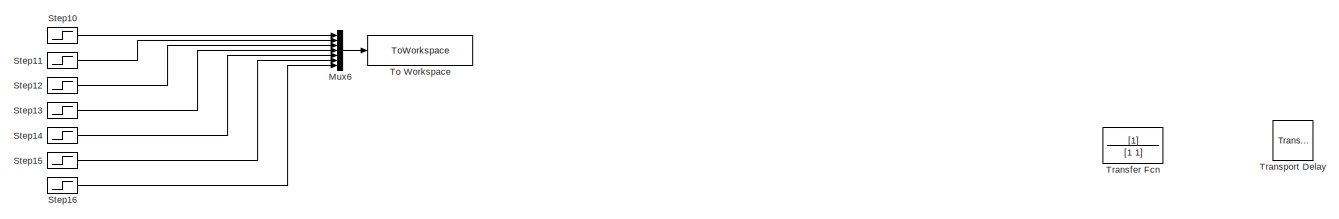
[diagram: root canvas - part 1/4, top center region]
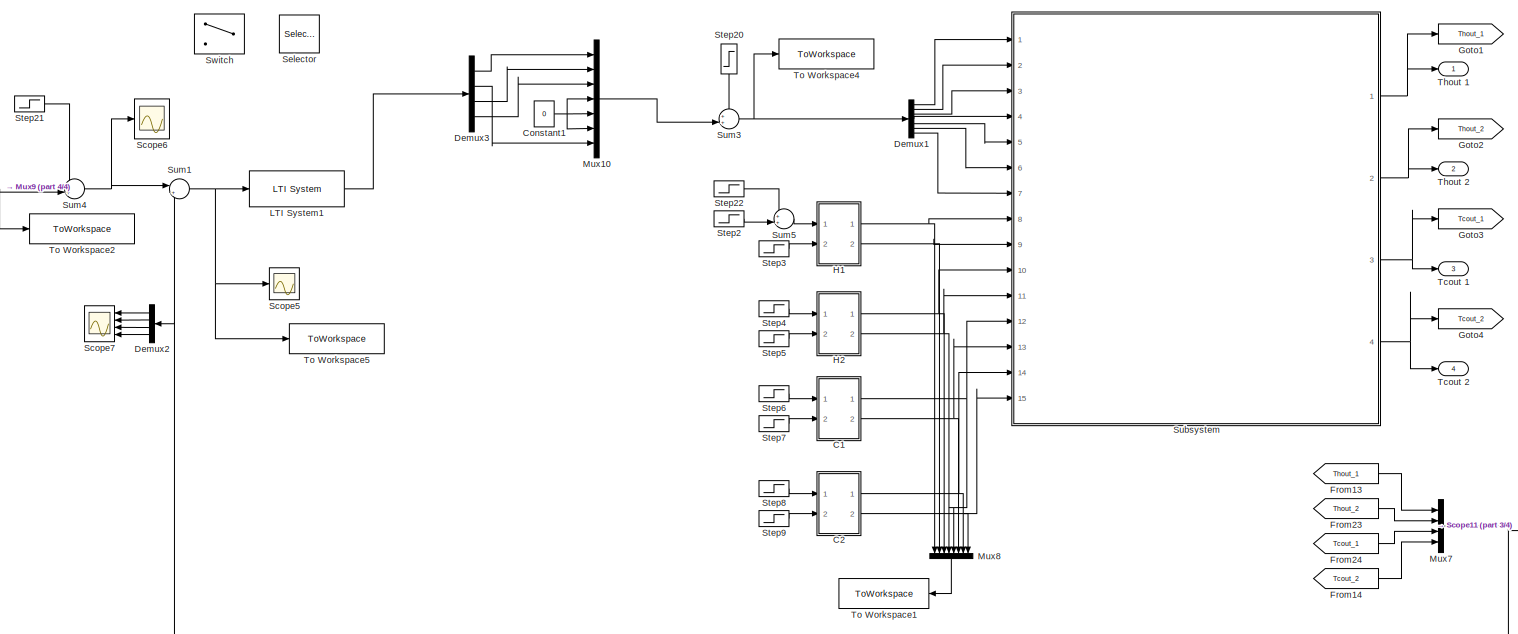
[diagram: root canvas - part 2/4, central region]
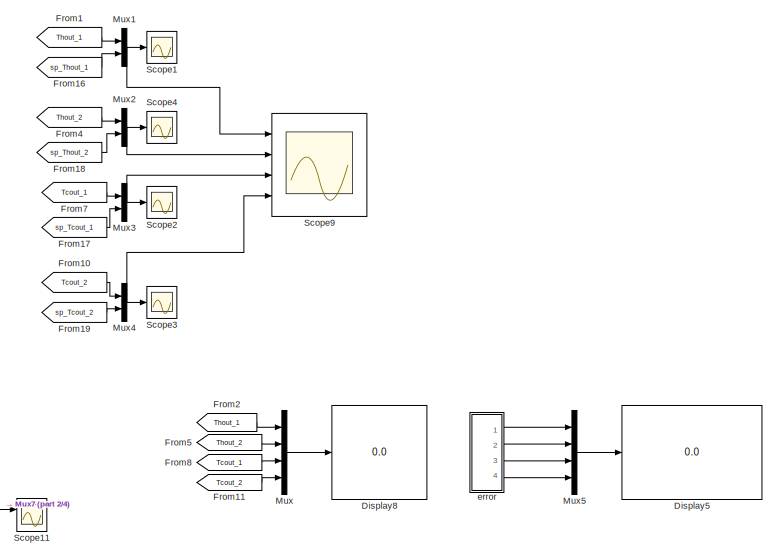
[diagram: root canvas - part 3/4, middle right region]
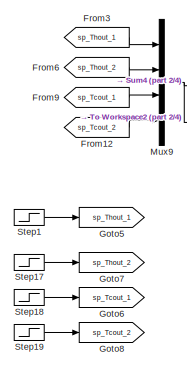
[diagram: root canvas - part 4/4, middle left region]
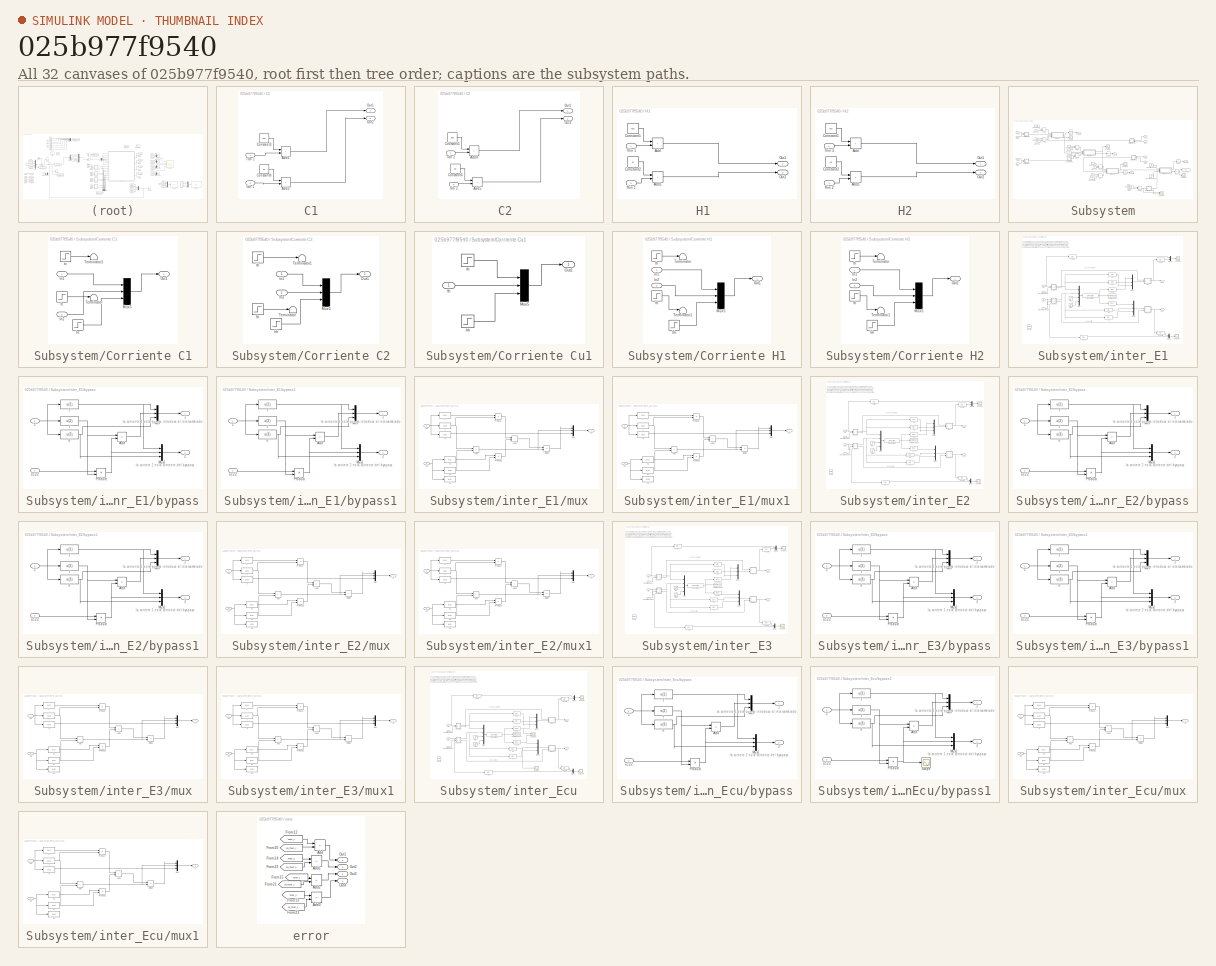
[diagram: thumbnail index - all 32 canvases of the model, root first then tree order]
MODEL slx_025b977f9540
KIND model
CONFIG AbsTol = auto
CONFIG EnableMultiTasking = off
CONFIG FixedStep = auto
CONFIG MaxStep = auto
CONFIG MinStep = auto
CONFIG RelTol = 1e-3
CONFIG SampleTimeConstraint = Unconstrained
CONFIG SolverName = ode15s
CONFIG StartTime = 0.0
CONFIG StopTime = 125
BLOCK [SubSystem] C1
  Ports = [2, 2]
  RequestExecContextInheritance = off
BLOCK [Sum] C1/Add2
  IconShape = rectangular
  Ports = [2, 1]
BLOCK [Sum] C1/Add3
  IconShape = rectangular
  Ports = [2, 1]
BLOCK [Constant] C1/Constant3
  Value = 300
BLOCK [Constant] C1/Constant4
  Value = 20
BLOCK [Outport] C1/Out1
  VectorParamsAs1DForOutWhenUnconnected = off
BLOCK [Outport] C1/Out2
  Port = 2
  VectorParamsAs1DForOutWhenUnconnected = off
BLOCK [Inport] C1/Tcin 1
BLOCK [Inport] C1/fcin 1
  Port = 2
BLOCK [SubSystem] C2 
  Ports = [2, 2]
  RequestExecContextInheritance = off
BLOCK [Sum] C2 /Add4
  IconShape = rectangular
  NameLocation = top
  Ports = [2, 1]
BLOCK [Sum] C2 /Add5
  IconShape = rectangular
  Ports = [2, 1]
BLOCK [Constant] C2 /Constant5
  Value = 280
BLOCK [Constant] C2 /Constant6
  Value = 30
BLOCK [Outport] C2 /Out1
  VectorParamsAs1DForOutWhenUnconnected = off
BLOCK [Outport] C2 /Out2
  Port = 2
  VectorParamsAs1DForOutWhenUnconnected = off
BLOCK [Inport] C2 /Tcin 2
BLOCK [Inport] C2 /fcin 2
  Port = 2
BLOCK [Constant] Constant1
  Value = 0
BLOCK [Demux] Demux1
  Outputs = 7
  Ports = [1, 7]
BLOCK [Demux] Demux2
  NameLocation = top
  Ports = [1, 4]
BLOCK [Demux] Demux3
  Ports = [1, 4]
BLOCK [Display] Display5
  Decimation = 1
  Format = long
  Ports = [1]
BLOCK [Display] Display8
  Decimation = 1
  Format = long
  Ports = [1]
BLOCK [From] From1
  GotoTag = Thout_1
  TagVisibility = global
BLOCK [From] From10
  GotoTag = Tcout_2
  TagVisibility = global
BLOCK [From] From11
  GotoTag = Tcout_2
  TagVisibility = global
BLOCK [From] From12
  GotoTag = sp_Tcout_2
  TagVisibility = global
BLOCK [From] From13
  GotoTag = Thout_1
  TagVisibility = global
BLOCK [From] From14
  GotoTag = Tcout_2
  TagVisibility = global
BLOCK [From] From16
  GotoTag = sp_Thout_1
  TagVisibility = global
BLOCK [From] From17
  GotoTag = sp_Tcout_1
  TagVisibility = global
BLOCK [From] From18
  GotoTag = sp_Thout_2
  TagVisibility = global
BLOCK [From] From19
  GotoTag = sp_Tcout_2
  TagVisibility = global
BLOCK [From] From2
  GotoTag = Thout_1
  TagVisibility = global
BLOCK [From] From23
  GotoTag = Thout_2
  TagVisibility = global
BLOCK [From] From24
  GotoTag = Tcout_1
  TagVisibility = global
BLOCK [From] From3
  GotoTag = sp_Thout_1
  TagVisibility = global
BLOCK [From] From4
  GotoTag = Thout_2
  TagVisibility = global
BLOCK [From] From5
  GotoTag = Thout_2
  TagVisibility = global
BLOCK [From] From6
  GotoTag = sp_Thout_2
  TagVisibility = global
BLOCK [From] From7
  GotoTag = Tcout_1
  TagVisibility = global
BLOCK [From] From8
  GotoTag = Tcout_1
  TagVisibility = global
BLOCK [From] From9
  GotoTag = sp_Tcout_1
  TagVisibility = global
BLOCK [Goto] Goto1
  GotoTag = Thout_1
  TagVisibility = global
BLOCK [Goto] Goto2
  GotoTag = Thout_2
  TagVisibility = global
BLOCK [Goto] Goto3
  GotoTag = Tcout_1
  TagVisibility = global
BLOCK [Goto] Goto4
  GotoTag = Tcout_2
  TagVisibility = global
BLOCK [Goto] Goto5
  GotoTag = sp_Thout_1
  TagVisibility = global
BLOCK [Goto] Goto6
  GotoTag = sp_Tcout_1
  TagVisibility = global
BLOCK [Goto] Goto7
  GotoTag = sp_Thout_2
  TagVisibility = global
BLOCK [Goto] Goto8
  GotoTag = sp_Tcout_2
  TagVisibility = global
BLOCK [SubSystem] H1 
  Ports = [2, 2]
  RequestExecContextInheritance = off
BLOCK [Sum] H1 /Add
  IconShape = rectangular
  Ports = [2, 1]
BLOCK [Sum] H1 /Add1
  IconShape = rectangular
  Ports = [2, 1]
BLOCK [Constant] H1 /Constant1
  Value = 620
BLOCK [Constant] H1 /Constant2
  Value = 10
BLOCK [Outport] H1 /Out1
  VectorParamsAs1DForOutWhenUnconnected = off
BLOCK [Outport] H1 /Out2
  Port = 2
  VectorParamsAs1DForOutWhenUnconnected = off
BLOCK [Inport] H1 /Thin 1
BLOCK [Inport] H1 /fhin 1
  Port = 2
BLOCK [SubSystem] H2
  Ports = [2, 2]
  RequestExecContextInheritance = off
BLOCK [Sum] H2/Add
  IconShape = rectangular
  Ports = [2, 1]
BLOCK [Sum] H2/Add1
  IconShape = rectangular
  Ports = [2, 1]
BLOCK [Constant] H2/Constant1
  Value = 720
BLOCK [Constant] H2/Constant2
  Value = 15
BLOCK [Outport] H2/Out1
  VectorParamsAs1DForOutWhenUnconnected = off
BLOCK [Outport] H2/Out2
  Port = 2
  VectorParamsAs1DForOutWhenUnconnected = off
BLOCK [Inport] H2/Thin 2
BLOCK [Inport] H2/fhin 2
  Port = 2
BLOCK [Reference] LTI System1  REF=cstblocks/LTI System
  Ports = [1, 1]
  SourceBlock = cstblocks/LTI System
  SourceProductBaseCode = CT
  SourceType = LTI Block
BLOCK [Mux] Mux
  DisplayOption = bar
  Ports = [4, 1]
BLOCK [Mux] Mux1
  DisplayOption = bar
  Inputs = 2
  Ports = [2, 1]
BLOCK [Mux] Mux10
  DisplayOption = bar
  Inputs = 7
  Ports = [7, 1]
BLOCK [Mux] Mux2
  DisplayOption = bar
  Inputs = 2
  Ports = [2, 1]
BLOCK [Mux] Mux3
  DisplayOption = bar
  Inputs = 2
  Ports = [2, 1]
BLOCK [Mux] Mux4
  DisplayOption = bar
  Inputs = 2
  Ports = [2, 1]
BLOCK [Mux] Mux5
  DisplayOption = bar
  Ports = [4, 1]
BLOCK [Mux] Mux6
  DisplayOption = bar
  Inputs = 7
  Ports = [7, 1]
BLOCK [Mux] Mux7
  DisplayOption = bar
  Ports = [4, 1]
BLOCK [Mux] Mux8
  DisplayOption = bar
  Inputs = 8
  NameLocation = left
  Ports = [8, 1]
BLOCK [Mux] Mux9
  DisplayOption = bar
  Ports = [4, 1]
BLOCK [Scope] Scope1
  Floating = off
  NumInputPorts = 1
  Ports = [1]
  ScopeSpecificationString = Simulink.scopes.TimeScopeBlockCfg('CurrentConfiguration', extmgr.ConfigurationSet(extmgr.Configuration('Core','General UI',true,'FigureColor',[1 1 1]),extmgr.Configuration('Core','Source UI',true),extmgr.Configuration('Sources','WiredSimulink',true,'DataLoggingSaveFormat','StructureWithTime','DataLoggingLimitDataPoints',true,'DataLoggingDecimation','1','DataLoggingDecimateData',true,'DataLoggingVa...<+2050ch>
BLOCK [Scope] Scope11
  Floating = off
  NumInputPorts = 2
  Ports = [2]
  ScopeSpecificationString = Simulink.scopes.TimeScopeBlockCfg('CurrentConfiguration', extmgr.ConfigurationSet(extmgr.Configuration('Core','General UI',true,'FigureColor',[1 1 1]),extmgr.Configuration('Core','Source UI',true),extmgr.Configuration('Sources','WiredSimulink',true,'DataLoggingVariableName','ScopeData6','DataLoggingSaveFormat','StructureWithTime','DataLoggingLimitDataPoints',true,'DataLoggingDecimation','1','DataL...<+2146ch>
BLOCK [Scope] Scope2
  Floating = off
  NumInputPorts = 1
  Ports = [1]
  ScopeSpecificationString = Simulink.scopes.TimeScopeBlockCfg('CurrentConfiguration', extmgr.ConfigurationSet(extmgr.Configuration('Core','General UI',true,'FigureColor',[1 1 1]),extmgr.Configuration('Core','Source UI',true),extmgr.Configuration('Sources','WiredSimulink',true,'DataLoggingVariableName','ScopeData2','DataLoggingSaveFormat','StructureWithTime','DataLoggingLimitDataPoints',true,'DataLoggingDecimation','1','DataL...<+2083ch>
BLOCK [Scope] Scope3
  Floating = off
  NumInputPorts = 1
  Ports = [1]
  ScopeSpecificationString = Simulink.scopes.TimeScopeBlockCfg('CurrentConfiguration', extmgr.ConfigurationSet(extmgr.Configuration('Core','General UI',true,'FigureColor',[1 1 1]),extmgr.Configuration('Core','Source UI',true),extmgr.Configuration('Sources','WiredSimulink',true,'DataLoggingVariableName','ScopeData3','DataLoggingSaveFormat','StructureWithTime','DataLoggingLimitDataPoints',true,'DataLoggingDecimation','1','DataL...<+2062ch>
BLOCK [Scope] Scope4
  Floating = off
  NumInputPorts = 1
  Ports = [1]
  ScopeSpecificationString = Simulink.scopes.TimeScopeBlockCfg('CurrentConfiguration', extmgr.ConfigurationSet(extmgr.Configuration('Core','General UI',true,'FigureColor',[1 1 1]),extmgr.Configuration('Core','Source UI',true),extmgr.Configuration('Sources','WiredSimulink',true,'DataLoggingSaveFormat','StructureWithTime','DataLoggingLimitDataPoints',true,'DataLoggingDecimation','1','DataLoggingDecimateData',true,'DataLoggingVa...<+2649ch>
BLOCK [Scope] Scope5
  Floating = off
  NumInputPorts = 1
  Ports = [1]
  ScopeSpecificationString = Simulink.scopes.TimeScopeBlockCfg('CurrentConfiguration', extmgr.ConfigurationSet(extmgr.Configuration('Core','General UI',true,'FigureColor',[1 1 1]),extmgr.Configuration('Core','Source UI',true),extmgr.Configuration('Sources','WiredSimulink',true,'DataLoggingVariableName','ScopeData1','DataLoggingSaveFormat','StructureWithTime','DataLoggingLimitDataPoints',true,'DataLoggingDecimation','1','DataL...<+2080ch>
BLOCK [Scope] Scope6
  Floating = off
  NumInputPorts = 1
  Ports = [1]
  ScopeSpecificationString = Simulink.scopes.TimeScopeBlockCfg('CurrentConfiguration', extmgr.ConfigurationSet(extmgr.Configuration('Core','General UI',true,'FigureColor',[0 0 0]),extmgr.Configuration('Core','Source UI',true),extmgr.Configuration('Sources','WiredSimulink',true,'DataLoggingVariableName','ScopeData2','DataLoggingSaveFormat','StructureWithTime','DataLoggingLimitDataPoints',true,'DataLoggingDecimation','1','DataL...<+1972ch>
BLOCK [Scope] Scope7
  Floating = off
  NameLocation = top
  NumInputPorts = 4
  Ports = [4]
  ScopeSpecificationString = Simulink.scopes.TimeScopeBlockCfg('CurrentConfiguration', extmgr.ConfigurationSet(extmgr.Configuration('Core','General UI',true,'FigureColor',[1 1 1]),extmgr.Configuration('Core','Source UI',true),extmgr.Configuration('Sources','WiredSimulink',true,'DataLoggingVariableName','ScopeData3','DataLoggingSaveFormat','StructureWithTime','DataLoggingLimitDataPoints',true,'DataLoggingDecimation','1','DataL...<+2088ch>
BLOCK [Scope] Scope9
  Floating = off
  NumInputPorts = 4
  Ports = [4]
  ScopeSpecificationString = Simulink.scopes.TimeScopeBlockCfg('CurrentConfiguration', extmgr.ConfigurationSet(extmgr.Configuration('Core','General UI',true,'FigureColor',[0.501960784313725 0.501960784313725 0.501960784313725]),extmgr.Configuration('Core','Source UI',true),extmgr.Configuration('Sources','WiredSimulink',true,'DataLoggingVariableName','ScopeData6','DataLoggingMaxPoints','2000','DataLoggingSaveFormat','Array','D...<+6413ch>
BLOCK [Selector] Selector
  IndexOptions = Index vector (port)
  Indices = [1 3]
  InputPortWidth = 3
  OutputSizes = 1
  Ports = [2, 1]
BLOCK [Step] Step1
  After = 385
  Before = 385
  Time = 1e9
BLOCK [Step] Step10
  After = uh112
  Before = uh112_initial
  Time = bypass_time
BLOCK [Step] Step11
  After = uh211
  Before = uh211_initial
  Time = bypass_time
BLOCK [Step] Step12
  After = uh222
  Before = uh222_initial
  Time = bypass_time
BLOCK [Step] Step13
  After = uc112
  Before = uc112_initial
  Time = bypass_time
BLOCK [Step] Step14
  After = uc211
  Before = uc211_initial
  Time = bypass_time
BLOCK [Step] Step15
  After = uc222
  Before = uc222_initial
  Time = bypass_time
BLOCK [Step] Step16
  After = fcu
  Time = fcu_time
BLOCK [Step] Step17
  After = 400
  Before = 400
  Time = 1e10
BLOCK [Step] Step18
  After = 560
  Before = 560
  Time = 1e9
BLOCK [Step] Step19
  After = 340
  Before = 340
  Time = 1e10
BLOCK [Step] Step2
  After = thin1
  Time = d_time
BLOCK [Step] Step20
  After = initials
  Before = initials
  NameLocation = left
  Time = 0
BLOCK [Step] Step21
  After = setpoints'
  Before = setpoints'
  Time = 0
BLOCK [Step] Step22
  After = -thin1
  Commented = on
  Time = d_time+25
BLOCK [Step] Step3
  After = fhin1
  Time = d_time
BLOCK [Step] Step4
  After = thin2
  Time = d_time
BLOCK [Step] Step5
  After = fhin2
  Time = d_time
BLOCK [Step] Step6
  After = tcin1
  Time = d_time
BLOCK [Step] Step7
  After = fcin1
  Time = d_time
BLOCK [Step] Step8
  After = tcin2
  Time = d_time
BLOCK [Step] Step9
  After = fcin2
  Time = d_time
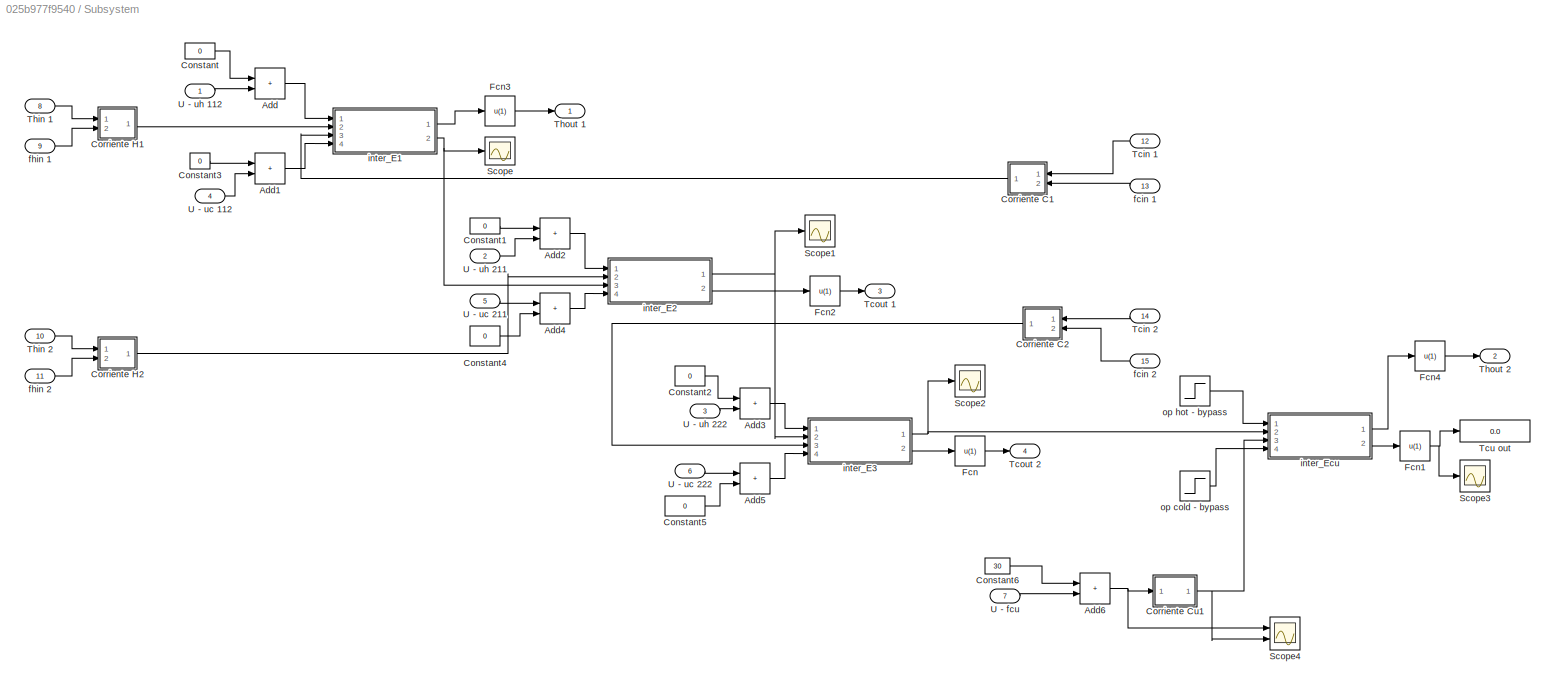
BLOCK [SubSystem] Subsystem
  MinAlgLoopOccurrences = on
  Ports = [15, 4]
  RequestExecContextInheritance = off
  TreatAsAtomicUnit = on
BLOCK [Sum] Subsystem/Add
  IconShape = rectangular
  Ports = [2, 1]
BLOCK [Sum] Subsystem/Add1
  IconShape = rectangular
  Ports = [2, 1]
BLOCK [Sum] Subsystem/Add2
  IconShape = rectangular
  Ports = [2, 1]
BLOCK [Sum] Subsystem/Add3
  IconShape = rectangular
  Ports = [2, 1]
BLOCK [Sum] Subsystem/Add4
  IconShape = rectangular
  Ports = [2, 1]
BLOCK [Sum] Subsystem/Add5
  IconShape = rectangular
  Ports = [2, 1]
BLOCK [Sum] Subsystem/Add6
  IconShape = rectangular
  Ports = [2, 1]
BLOCK [Constant] Subsystem/Constant
  Value = 0
BLOCK [Constant] Subsystem/Constant1
  Value = 0
BLOCK [Constant] Subsystem/Constant2
  Value = 0
BLOCK [Constant] Subsystem/Constant3
  Value = 0
BLOCK [Constant] Subsystem/Constant4
  Value = 0
BLOCK [Constant] Subsystem/Constant5
  Value = 0
BLOCK [Constant] Subsystem/Constant6
  Value = 30
BLOCK [SubSystem] Subsystem/Corriente C1
  NameLocation = top
  Ports = [2, 1]
  RequestExecContextInheritance = off
BLOCK [Inport] Subsystem/Corriente C1/In1
BLOCK [Inport] Subsystem/Corriente C1/In2
  Port = 2
BLOCK [Mux] Subsystem/Corriente C1/Mux5
  DisplayOption = bar
  Inputs = 3
  Ports = [3, 1]
BLOCK [Outport] Subsystem/Corriente C1/Out1
  VectorParamsAs1DForOutWhenUnconnected = off
BLOCK [Terminator] Subsystem/Corriente C1/Terminator
BLOCK [Terminator] Subsystem/Corriente C1/Terminator1
BLOCK [Step] Subsystem/Corriente C1/fc
  After = 13
  Before = 13
  SampleTime = 0
BLOCK [Step] Subsystem/Corriente C1/hc
  Before = 1
  SampleTime = 0
BLOCK [Step] Subsystem/Corriente C1/tc
  After = 333
  Before = 333
  SampleTime = 0
BLOCK [SubSystem] Subsystem/Corriente C2
  Ports = [2, 1]
  RequestExecContextInheritance = off
BLOCK [Inport] Subsystem/Corriente C2/In1
BLOCK [Inport] Subsystem/Corriente C2/In2
  Port = 2
BLOCK [Mux] Subsystem/Corriente C2/Mux5
  DisplayOption = bar
  Inputs = 3
  Ports = [3, 1]
BLOCK [Outport] Subsystem/Corriente C2/Out1
  VectorParamsAs1DForOutWhenUnconnected = off
BLOCK [Terminator] Subsystem/Corriente C2/Terminator
BLOCK [Terminator] Subsystem/Corriente C2/Terminator1
BLOCK [Step] Subsystem/Corriente C2/fh
  After = 12
  Before = 12
  SampleTime = 0
BLOCK [Step] Subsystem/Corriente C2/hh
  Before = 1
  SampleTime = 0
BLOCK [Step] Subsystem/Corriente C2/th
  After = 293
  Before = 293
  SampleTime = 0
  Time = 2
BLOCK [SubSystem] Subsystem/Corriente Cu1
  Ports = [1, 1]
  RequestExecContextInheritance = off
BLOCK [Mux] Subsystem/Corriente Cu1/Mux5
  DisplayOption = bar
  Inputs = 3
  Ports = [3, 1]
BLOCK [Outport] Subsystem/Corriente Cu1/Out1
  VectorParamsAs1DForOutWhenUnconnected = off
BLOCK [Inport] Subsystem/Corriente Cu1/fh
BLOCK [Step] Subsystem/Corriente Cu1/hh
  Before = 1
  SampleTime = 0
BLOCK [Step] Subsystem/Corriente Cu1/th
  After = 283
  Before = 283
  SampleTime = 0
  Time = 2
BLOCK [SubSystem] Subsystem/Corriente H1
  Ports = [2, 1]
  RequestExecContextInheritance = off
BLOCK [Inport] Subsystem/Corriente H1/In1
BLOCK [Inport] Subsystem/Corriente H1/In2
  Port = 2
BLOCK [Mux] Subsystem/Corriente H1/Mux5
  DisplayOption = bar
  Inputs = 3
  Ports = [3, 1]
BLOCK [Outport] Subsystem/Corriente H1/Out1
  VectorParamsAs1DForOutWhenUnconnected = off
BLOCK [Terminator] Subsystem/Corriente H1/Terminator
BLOCK [Terminator] Subsystem/Corriente H1/Terminator1
BLOCK [Step] Subsystem/Corriente H1/fh
  After = 20
  Before = 20
  SampleTime = 0
BLOCK [Step] Subsystem/Corriente H1/hh
  Before = 1
  SampleTime = 0
BLOCK [Step] Subsystem/Corriente H1/th
  After = 423
  Before = 423
  SampleTime = 0
  Time = 2
BLOCK [SubSystem] Subsystem/Corriente H2
  Ports = [2, 1]
  RequestExecContextInheritance = off
BLOCK [Inport] Subsystem/Corriente H2/In1
BLOCK [Inport] Subsystem/Corriente H2/In2
  Port = 2
BLOCK [Mux] Subsystem/Corriente H2/Mux5
  DisplayOption = bar
  Inputs = 3
  Ports = [3, 1]
BLOCK [Outport] Subsystem/Corriente H2/Out1
  VectorParamsAs1DForOutWhenUnconnected = off
BLOCK [Terminator] Subsystem/Corriente H2/Terminator
BLOCK [Terminator] Subsystem/Corriente H2/Terminator1
BLOCK [Step] Subsystem/Corriente H2/fh
  After = 20
  Before = 20
  SampleTime = 0
BLOCK [Step] Subsystem/Corriente H2/hh
  Before = 1
  SampleTime = 0
BLOCK [Step] Subsystem/Corriente H2/th
  After = 423
  Before = 423
  SampleTime = 0
  Time = 2
BLOCK [Fcn] Subsystem/Fcn
  Expr = u(1)
BLOCK [Fcn] Subsystem/Fcn1
  Expr = u(1)
BLOCK [Fcn] Subsystem/Fcn2
  Expr = u(1)
BLOCK [Fcn] Subsystem/Fcn3
  Expr = u(1)
BLOCK [Fcn] Subsystem/Fcn4
  Expr = u(1)
BLOCK [Scope] Subsystem/Scope
  Floating = off
  NumInputPorts = 1
  Ports = [1]
  ScopeSpecificationString = Simulink.scopes.TimeScopeBlockCfg('CurrentConfiguration', extmgr.ConfigurationSet(extmgr.Configuration('Core','General UI',true),extmgr.Configuration('Core','Source UI',true),extmgr.Configuration('Sources','WiredSimulink',true,'DataLoggingVariableName','ScopeData1'),extmgr.Configuration('Visuals','Time Domain',true,'SerializedDisplays',{struct('MinYLimReal','416.41674','MaxYLimReal','417.95374','Y...<+1467ch>
BLOCK [Scope] Subsystem/Scope1
  Floating = off
  NumInputPorts = 1
  Ports = [1]
  ScopeSpecificationString = Simulink.scopes.TimeScopeBlockCfg('CurrentConfiguration', extmgr.ConfigurationSet(extmgr.Configuration('Core','General UI',true),extmgr.Configuration('Core','Source UI',true),extmgr.Configuration('Sources','WiredSimulink',true,'DataLoggingVariableName','ScopeData2'),extmgr.Configuration('Visuals','Time Domain',true,'SerializedDisplays',{struct('MinYLimReal','-6.15277','MaxYLimReal','8.30496','YLab...<+1474ch>
BLOCK [Scope] Subsystem/Scope2
  Floating = off
  NumInputPorts = 1
  Ports = [1]
  ScopeSpecificationString = Simulink.scopes.TimeScopeBlockCfg('CurrentConfiguration', extmgr.ConfigurationSet(extmgr.Configuration('Core','General UI',true),extmgr.Configuration('Core','Source UI',true),extmgr.Configuration('Sources','WiredSimulink',true,'DataLoggingVariableName','ScopeData3'),extmgr.Configuration('Visuals','Time Domain',true,'SerializedDisplays',{struct('MinYLimReal','-1.14737','MaxYLimReal','2.9746','YLabe...<+1416ch>
BLOCK [Scope] Subsystem/Scope3
  Floating = off
  NumInputPorts = 1
  Ports = [1]
  ScopeSpecificationString = Simulink.scopes.TimeScopeBlockCfg('CurrentConfiguration', extmgr.ConfigurationSet(extmgr.Configuration('Core','General UI',true),extmgr.Configuration('Core','Source UI',true),extmgr.Configuration('Sources','WiredSimulink',true,'DataLoggingVariableName','ScopeData2','DataLoggingSaveFormat','StructureWithTime','DataLoggingLimitDataPoints',true,'DataLoggingDecimation','1','DataLoggingDecimateData',tr...<+1739ch>
BLOCK [Scope] Subsystem/Scope4
  Floating = off
  NumInputPorts = 2
  Ports = [2]
  ScopeSpecificationString = Simulink.scopes.TimeScopeBlockCfg('CurrentConfiguration', extmgr.ConfigurationSet(extmgr.Configuration('Core','General UI',true),extmgr.Configuration('Core','Source UI',true),extmgr.Configuration('Sources','WiredSimulink',true,'DataLoggingVariableName','ScopeData1'),extmgr.Configuration('Visuals','Time Domain',true,'SerializedDisplays',{struct('MinYLimReal','-627.625','MaxYLimReal','5658.625','YLa...<+1496ch>
BLOCK [Inport] Subsystem/Tcin 1
  Port = 12
BLOCK [Inport] Subsystem/Tcin 2
  Port = 14
BLOCK [Outport] Subsystem/Tcout 1
  Port = 3
  VectorParamsAs1DForOutWhenUnconnected = off
BLOCK [Outport] Subsystem/Tcout 2
  Port = 4
  VectorParamsAs1DForOutWhenUnconnected = off
BLOCK [Display] Subsystem/Tcu out
  Decimation = 1
  NameLocation = top
  Ports = [1]
BLOCK [Inport] Subsystem/Thin 1
  Port = 8
BLOCK [Inport] Subsystem/Thin 2
  Port = 10
BLOCK [Outport] Subsystem/Thout 1
  VectorParamsAs1DForOutWhenUnconnected = off
BLOCK [Outport] Subsystem/Thout 2
  Port = 2
  VectorParamsAs1DForOutWhenUnconnected = off
BLOCK [Inport] Subsystem/U - fcu
  Port = 7
BLOCK [Inport] Subsystem/U - uc 112
  Port = 4
BLOCK [Inport] Subsystem/U - uc 211
  Port = 5
BLOCK [Inport] Subsystem/U - uc 222
  Port = 6
BLOCK [Inport] Subsystem/U - uh 112
BLOCK [Inport] Subsystem/U - uh 211
  Port = 2
BLOCK [Inport] Subsystem/U - uh 222
  Port = 3
BLOCK [Inport] Subsystem/fcin 1
  Port = 13
BLOCK [Inport] Subsystem/fcin 2
  Port = 15
BLOCK [Inport] Subsystem/fhin 1
  Port = 9
BLOCK [Inport] Subsystem/fhin 2
  Port = 11
BLOCK [SubSystem] Subsystem/inter_E1
  Ports = [4, 2]
  RequestExecContextInheritance = off
BLOCK [Step] Subsystem/inter_E1/Area
  After = area1
  Before = area1_ini
  SampleTime = 0
  Time = area_time
BLOCK [Inport] Subsystem/inter_E1/C in
  Port = 3
BLOCK [Outport] Subsystem/inter_E1/C out
  Port = 2
  VectorParamsAs1DForOutWhenUnconnected = off
BLOCK [Fcn] Subsystem/inter_E1/Fc
  Expr = u(2)
BLOCK [Fcn] Subsystem/inter_E1/Fh
  Expr = u(2)
BLOCK [Inport] Subsystem/inter_E1/H In
  Port = 2
BLOCK [Outport] Subsystem/inter_E1/H out
  VectorParamsAs1DForOutWhenUnconnected = off
BLOCK [Mux] Subsystem/inter_E1/Mux
  DisplayOption = bar
  Ports = [4, 1]
BLOCK [Mux] Subsystem/inter_E1/Mux1
  DisplayOption = bar
  Inputs = 3
  Ports = [3, 1]
BLOCK [Mux] Subsystem/inter_E1/Mux2
  DisplayOption = bar
  Inputs = 3
  Ports = [3, 1]
BLOCK [Mux] Subsystem/inter_E1/Mux3
  DisplayOption = bar
  Inputs = 2
  Ports = [2, 1]
BLOCK [Mux] Subsystem/inter_E1/Mux6
  DisplayOption = bar
  Inputs = 2
  Ports = [2, 1]
BLOCK [Reference] Subsystem/inter_E1/Ramp  REF=simulink/Sources/Ramp
  Ports = [0, 1]
  SourceBlock = simulink/Sources/Ramp
  SourceProductBaseCode = SL
  SourceType = Ramp
BLOCK [S-Function] Subsystem/inter_E1/S-Function2
  EnableBusSupport = off
  FunctionName = Int_er
  Parameters = 10 620 300 112 2
  Ports = [1, 1]
  SFcnIsStateOwnerBlock = off
  SFunctionDeploymentMode = off
BLOCK [Scope] Subsystem/inter_E1/Scope1
  Floating = off
  NumInputPorts = 1
  Ports = [1]
  ScopeSpecificationString = Simulink.scopes.TimeScopeBlockCfg('CurrentConfiguration', extmgr.ConfigurationSet(extmgr.Configuration('Core','General UI',true),extmgr.Configuration('Core','Source UI',true),extmgr.Configuration('Sources','WiredSimulink',true),extmgr.Configuration('Visuals','Time Domain',true),extmgr.Configuration('Tools','Plot Navigation',true),extmgr.Configuration('Tools','Measurements',true)),'Version','2021a'...<+1ch>  <repeated x6 — deduplicated; at blocks: Scope1, Scope8>
BLOCK [Scope] Subsystem/inter_E1/Scope8
  Floating = off
  NumInputPorts = 1
  Ports = [1]
BLOCK [Fcn] Subsystem/inter_E1/Tcin1
  Expr = u(1)
BLOCK [Fcn] Subsystem/inter_E1/Tcin2
  Expr = u(1)
BLOCK [Fcn] Subsystem/inter_E1/Tcout
  Expr = u(11)
BLOCK [Fcn] Subsystem/inter_E1/Tcout1
  Expr = u(1)
BLOCK [Fcn] Subsystem/inter_E1/Tcout2
  Expr = u(1)
BLOCK [Fcn] Subsystem/inter_E1/Thout
  Expr = u(10)
BLOCK [ToWorkspace] Subsystem/inter_E1/To Workspace
  MaxDataPoints = inf
  Ports = [1]
  SampleTime = -1
  VariableName = simout_inter111
BLOCK [SubSystem] Subsystem/inter_E1/bypass
  Ports = [2, 2]
  RequestExecContextInheritance = off
BLOCK [Outport] Subsystem/inter_E1/bypass/ 1
  VectorParamsAs1DForOutWhenUnconnected = off
BLOCK [Outport] Subsystem/inter_E1/bypass/ 2
  Port = 2
  VectorParamsAs1DForOutWhenUnconnected = off
BLOCK [Inport] Subsystem/inter_E1/bypass/1
BLOCK [Sum] Subsystem/inter_E1/bypass/Add
  IconShape = rectangular
  Inputs = +-
  Ports = [2, 1]
BLOCK [Mux] Subsystem/inter_E1/bypass/Mux
  DisplayOption = bar
  Inputs = 3
  Ports = [3, 1]
BLOCK [Mux] Subsystem/inter_E1/bypass/Mux1
  DisplayOption = bar
  Inputs = 3
  Ports = [3, 1]
BLOCK [Product] Subsystem/inter_E1/bypass/Product
  Ports = [2, 1]
BLOCK [Fcn] Subsystem/inter_E1/bypass/T
  Expr = u(1)
BLOCK [Fcn] Subsystem/inter_E1/bypass/f
  Expr = u(2)
BLOCK [Fcn] Subsystem/inter_E1/bypass/h
  Expr = u(3)
BLOCK [Inport] Subsystem/inter_E1/bypass/u122
  Port = 2
BLOCK [SubSystem] Subsystem/inter_E1/bypass1
  Ports = [2, 2]
  RequestExecContextInheritance = off
BLOCK [Outport] Subsystem/inter_E1/bypass1/ 1
  VectorParamsAs1DForOutWhenUnconnected = off
BLOCK [Outport] Subsystem/inter_E1/bypass1/ 2
  Port = 2
  VectorParamsAs1DForOutWhenUnconnected = off
BLOCK [Inport] Subsystem/inter_E1/bypass1/1
BLOCK [Sum] Subsystem/inter_E1/bypass1/Add
  IconShape = rectangular
  Inputs = +-
  Ports = [2, 1]
BLOCK [Mux] Subsystem/inter_E1/bypass1/Mux
  DisplayOption = bar
  Inputs = 3
  Ports = [3, 1]
BLOCK [Mux] Subsystem/inter_E1/bypass1/Mux1
  DisplayOption = bar
  Inputs = 3
  Ports = [3, 1]
BLOCK [Product] Subsystem/inter_E1/bypass1/Product
  Ports = [2, 1]
BLOCK [Fcn] Subsystem/inter_E1/bypass1/T
  Expr = u(1)
BLOCK [Fcn] Subsystem/inter_E1/bypass1/f
  Expr = u(2)
BLOCK [Fcn] Subsystem/inter_E1/bypass1/h
  Expr = u(3)
BLOCK [Inport] Subsystem/inter_E1/bypass1/u122
  Port = 2
BLOCK [Step] Subsystem/inter_E1/fac
  After = 0
  SampleTime = 0
BLOCK [Fcn] Subsystem/inter_E1/hc
  Expr = u(3)
BLOCK [Fcn] Subsystem/inter_E1/hh
  Expr = u(3)
BLOCK [SubSystem] Subsystem/inter_E1/mux
  Ports = [2, 1]
  RequestExecContextInheritance = off
BLOCK [Sum] Subsystem/inter_E1/mux/Add
  IconShape = rectangular
  Ports = [2, 1]
BLOCK [Sum] Subsystem/inter_E1/mux/Add1
  IconShape = rectangular
  Ports = [2, 1]
BLOCK [Product] Subsystem/inter_E1/mux/Divide
  Inputs = */
  Ports = [2, 1]
BLOCK [Outport] Subsystem/inter_E1/mux/F 
  VectorParamsAs1DForOutWhenUnconnected = off
BLOCK [Inport] Subsystem/inter_E1/mux/F1
BLOCK [Inport] Subsystem/inter_E1/mux/F2
  Port = 2
BLOCK [Mux] Subsystem/inter_E1/mux/Mux
  DisplayOption = bar
  Inputs = 3
  Ports = [3, 1]
BLOCK [Product] Subsystem/inter_E1/mux/Product
  Ports = [2, 1]
BLOCK [Product] Subsystem/inter_E1/mux/Product1
  Ports = [2, 1]
BLOCK [Fcn] Subsystem/inter_E1/mux/T
  Expr = u(1)
BLOCK [Fcn] Subsystem/inter_E1/mux/T1
  Expr = u(1)
BLOCK [Fcn] Subsystem/inter_E1/mux/f
  Expr = u(2)
BLOCK [Fcn] Subsystem/inter_E1/mux/f1
  Expr = u(2)
BLOCK [Fcn] Subsystem/inter_E1/mux/h
  Expr = u(3)
BLOCK [Fcn] Subsystem/inter_E1/mux/h1
  Expr = u(3)
BLOCK [SubSystem] Subsystem/inter_E1/mux1
  Ports = [2, 1]
  RequestExecContextInheritance = off
BLOCK [Sum] Subsystem/inter_E1/mux1/Add
  IconShape = rectangular
  Ports = [2, 1]
BLOCK [Sum] Subsystem/inter_E1/mux1/Add1
  IconShape = rectangular
  Ports = [2, 1]
BLOCK [Product] Subsystem/inter_E1/mux1/Divide
  Inputs = */
  Ports = [2, 1]
BLOCK [Outport] Subsystem/inter_E1/mux1/F 
  VectorParamsAs1DForOutWhenUnconnected = off
BLOCK [Inport] Subsystem/inter_E1/mux1/F1
BLOCK [Inport] Subsystem/inter_E1/mux1/F2
  Port = 2
BLOCK [Mux] Subsystem/inter_E1/mux1/Mux
  DisplayOption = bar
  Inputs = 3
  Ports = [3, 1]
BLOCK [Product] Subsystem/inter_E1/mux1/Product
  Ports = [2, 1]
BLOCK [Product] Subsystem/inter_E1/mux1/Product1
  Ports = [2, 1]
BLOCK [Fcn] Subsystem/inter_E1/mux1/T
  Expr = u(1)
BLOCK [Fcn] Subsystem/inter_E1/mux1/T1
  Expr = u(1)
BLOCK [Fcn] Subsystem/inter_E1/mux1/f
  Expr = u(2)
BLOCK [Fcn] Subsystem/inter_E1/mux1/f1
  Expr = u(2)
BLOCK [Fcn] Subsystem/inter_E1/mux1/h
  Expr = u(3)
BLOCK [Fcn] Subsystem/inter_E1/mux1/h1
  Expr = u(3)
BLOCK [Inport] Subsystem/inter_E1/op cold - bypass 
  Port = 4
BLOCK [Inport] Subsystem/inter_E1/op hot - bypass 
BLOCK [SubSystem] Subsystem/inter_E2
  Ports = [4, 2]
  RequestExecContextInheritance = off
BLOCK [Step] Subsystem/inter_E2/Area
  After = area2
  Before = area2_ini
  SampleTime = 0
  Time = area_time
BLOCK [Inport] Subsystem/inter_E2/C in
  Port = 3
BLOCK [Outport] Subsystem/inter_E2/C out
  Port = 2
  VectorParamsAs1DForOutWhenUnconnected = off
BLOCK [Fcn] Subsystem/inter_E2/Fc
  Expr = u(2)
BLOCK [Fcn] Subsystem/inter_E2/Fh
  Expr = u(2)
BLOCK [Inport] Subsystem/inter_E2/H In
  Port = 2
BLOCK [Outport] Subsystem/inter_E2/H out
  VectorParamsAs1DForOutWhenUnconnected = off
BLOCK [Mux] Subsystem/inter_E2/Mux
  DisplayOption = bar
  Ports = [4, 1]
BLOCK [Mux] Subsystem/inter_E2/Mux1
  DisplayOption = bar
  Inputs = 3
  Ports = [3, 1]
BLOCK [Mux] Subsystem/inter_E2/Mux2
  DisplayOption = bar
  Inputs = 3
  Ports = [3, 1]
BLOCK [Mux] Subsystem/inter_E2/Mux3
  DisplayOption = bar
  Inputs = 2
  Ports = [2, 1]
BLOCK [Mux] Subsystem/inter_E2/Mux6
  DisplayOption = bar
  Inputs = 2
  Ports = [2, 1]
BLOCK [Reference] Subsystem/inter_E2/Ramp  REF=simulink/Sources/Ramp
  Ports = [0, 1]
  SourceBlock = simulink/Sources/Ramp
  SourceProductBaseCode = SL
  SourceType = Ramp
BLOCK [S-Function] Subsystem/inter_E2/S-Function2
  EnableBusSupport = off
  FunctionName = Int_er
  Parameters = 10 720 417.5 211 2
  Ports = [1, 1]
  SFcnIsStateOwnerBlock = off
  SFunctionDeploymentMode = off
BLOCK [Scope] Subsystem/inter_E2/Scope1
  Floating = off
  NumInputPorts = 1
  Ports = [1]
BLOCK [Scope] Subsystem/inter_E2/Scope8
  Floating = off
  NumInputPorts = 1
  Ports = [1]
BLOCK [Fcn] Subsystem/inter_E2/Tcin1
  Expr = u(1)
BLOCK [Fcn] Subsystem/inter_E2/Tcin2
  Expr = u(1)
BLOCK [Fcn] Subsystem/inter_E2/Tcout
  Expr = u(11)
BLOCK [Fcn] Subsystem/inter_E2/Tcout1
  Expr = u(1)
BLOCK [Fcn] Subsystem/inter_E2/Tcout2
  Expr = u(1)
BLOCK [Fcn] Subsystem/inter_E2/Thout
  Expr = u(10)
BLOCK [ToWorkspace] Subsystem/inter_E2/To Workspace
  MaxDataPoints = inf
  Ports = [1]
  SampleTime = -1
  VariableName = simout_int121
BLOCK [SubSystem] Subsystem/inter_E2/bypass
  Ports = [2, 2]
  RequestExecContextInheritance = off
BLOCK [Outport] Subsystem/inter_E2/bypass/ 1
  VectorParamsAs1DForOutWhenUnconnected = off
BLOCK [Outport] Subsystem/inter_E2/bypass/ 2
  Port = 2
  VectorParamsAs1DForOutWhenUnconnected = off
BLOCK [Inport] Subsystem/inter_E2/bypass/1
BLOCK [Sum] Subsystem/inter_E2/bypass/Add
  IconShape = rectangular
  Inputs = +-
  Ports = [2, 1]
BLOCK [Mux] Subsystem/inter_E2/bypass/Mux
  DisplayOption = bar
  Inputs = 3
  Ports = [3, 1]
BLOCK [Mux] Subsystem/inter_E2/bypass/Mux1
  DisplayOption = bar
  Inputs = 3
  Ports = [3, 1]
BLOCK [Product] Subsystem/inter_E2/bypass/Product
  Ports = [2, 1]
BLOCK [Fcn] Subsystem/inter_E2/bypass/T
  Expr = u(1)
BLOCK [Fcn] Subsystem/inter_E2/bypass/f
  Expr = u(2)
BLOCK [Fcn] Subsystem/inter_E2/bypass/h
  Expr = u(3)
BLOCK [Inport] Subsystem/inter_E2/bypass/u122
  Port = 2
BLOCK [SubSystem] Subsystem/inter_E2/bypass1
  Ports = [2, 2]
  RequestExecContextInheritance = off
BLOCK [Outport] Subsystem/inter_E2/bypass1/ 1
  VectorParamsAs1DForOutWhenUnconnected = off
BLOCK [Outport] Subsystem/inter_E2/bypass1/ 2
  Port = 2
  VectorParamsAs1DForOutWhenUnconnected = off
BLOCK [Inport] Subsystem/inter_E2/bypass1/1
BLOCK [Sum] Subsystem/inter_E2/bypass1/Add
  IconShape = rectangular
  Inputs = +-
  Ports = [2, 1]
BLOCK [Mux] Subsystem/inter_E2/bypass1/Mux
  DisplayOption = bar
  Inputs = 3
  Ports = [3, 1]
BLOCK [Mux] Subsystem/inter_E2/bypass1/Mux1
  DisplayOption = bar
  Inputs = 3
  Ports = [3, 1]
BLOCK [Product] Subsystem/inter_E2/bypass1/Product
  Ports = [2, 1]
BLOCK [Fcn] Subsystem/inter_E2/bypass1/T
  Expr = u(1)
BLOCK [Fcn] Subsystem/inter_E2/bypass1/f
  Expr = u(2)
BLOCK [Fcn] Subsystem/inter_E2/bypass1/h
  Expr = u(3)
BLOCK [Inport] Subsystem/inter_E2/bypass1/u122
  Port = 2
BLOCK [Step] Subsystem/inter_E2/fac
  After = 0
  SampleTime = 0
BLOCK [Fcn] Subsystem/inter_E2/hc
  Expr = u(3)
BLOCK [Fcn] Subsystem/inter_E2/hh
  Expr = u(3)
BLOCK [SubSystem] Subsystem/inter_E2/mux
  Ports = [2, 1]
  RequestExecContextInheritance = off
BLOCK [Sum] Subsystem/inter_E2/mux/Add
  IconShape = rectangular
  Ports = [2, 1]
BLOCK [Sum] Subsystem/inter_E2/mux/Add1
  IconShape = rectangular
  Ports = [2, 1]
BLOCK [Product] Subsystem/inter_E2/mux/Divide
  Inputs = */
  Ports = [2, 1]
BLOCK [Outport] Subsystem/inter_E2/mux/F 
  VectorParamsAs1DForOutWhenUnconnected = off
BLOCK [Inport] Subsystem/inter_E2/mux/F1
BLOCK [Inport] Subsystem/inter_E2/mux/F2
  Port = 2
BLOCK [Mux] Subsystem/inter_E2/mux/Mux
  DisplayOption = bar
  Inputs = 3
  Ports = [3, 1]
BLOCK [Product] Subsystem/inter_E2/mux/Product
  Ports = [2, 1]
BLOCK [Product] Subsystem/inter_E2/mux/Product1
  Ports = [2, 1]
BLOCK [Fcn] Subsystem/inter_E2/mux/T
  Expr = u(1)
BLOCK [Fcn] Subsystem/inter_E2/mux/T1
  Expr = u(1)
BLOCK [Fcn] Subsystem/inter_E2/mux/f
  Expr = u(2)
BLOCK [Fcn] Subsystem/inter_E2/mux/f1
  Expr = u(2)
BLOCK [Fcn] Subsystem/inter_E2/mux/h
  Expr = u(3)
BLOCK [Fcn] Subsystem/inter_E2/mux/h1
  Expr = u(3)
BLOCK [SubSystem] Subsystem/inter_E2/mux1
  Ports = [2, 1]
  RequestExecContextInheritance = off
BLOCK [Sum] Subsystem/inter_E2/mux1/Add
  IconShape = rectangular
  Ports = [2, 1]
BLOCK [Sum] Subsystem/inter_E2/mux1/Add1
  IconShape = rectangular
  Ports = [2, 1]
BLOCK [Product] Subsystem/inter_E2/mux1/Divide
  Inputs = */
  Ports = [2, 1]
BLOCK [Outport] Subsystem/inter_E2/mux1/F 
  VectorParamsAs1DForOutWhenUnconnected = off
BLOCK [Inport] Subsystem/inter_E2/mux1/F1
BLOCK [Inport] Subsystem/inter_E2/mux1/F2
  Port = 2
BLOCK [Mux] Subsystem/inter_E2/mux1/Mux
  DisplayOption = bar
  Inputs = 3
  Ports = [3, 1]
BLOCK [Product] Subsystem/inter_E2/mux1/Product
  Ports = [2, 1]
BLOCK [Product] Subsystem/inter_E2/mux1/Product1
  Ports = [2, 1]
BLOCK [Fcn] Subsystem/inter_E2/mux1/T
  Expr = u(1)
BLOCK [Fcn] Subsystem/inter_E2/mux1/T1
  Expr = u(1)
BLOCK [Fcn] Subsystem/inter_E2/mux1/f
  Expr = u(2)
BLOCK [Fcn] Subsystem/inter_E2/mux1/f1
  Expr = u(2)
BLOCK [Fcn] Subsystem/inter_E2/mux1/h
  Expr = u(3)
BLOCK [Fcn] Subsystem/inter_E2/mux1/h1
  Expr = u(3)
BLOCK [Inport] Subsystem/inter_E2/op cold - bypass 
  Port = 4
BLOCK [Inport] Subsystem/inter_E2/op hot - bypass 
BLOCK [SubSystem] Subsystem/inter_E3
  Ports = [4, 2]
  RequestExecContextInheritance = off
BLOCK [Step] Subsystem/inter_E3/Area
  After = area3
  Before = area3_ini
  SampleTime = 0
  Time = area_time
BLOCK [Inport] Subsystem/inter_E3/C in
  Port = 3
BLOCK [Outport] Subsystem/inter_E3/C out
  Port = 2
  VectorParamsAs1DForOutWhenUnconnected = off
BLOCK [Fcn] Subsystem/inter_E3/Fc
  Expr = u(2)
BLOCK [Fcn] Subsystem/inter_E3/Fh
  Expr = u(2)
BLOCK [Inport] Subsystem/inter_E3/H In
  Port = 2
BLOCK [Outport] Subsystem/inter_E3/H out
  VectorParamsAs1DForOutWhenUnconnected = off
BLOCK [Mux] Subsystem/inter_E3/Mux
  DisplayOption = bar
  Ports = [4, 1]
BLOCK [Mux] Subsystem/inter_E3/Mux1
  DisplayOption = bar
  Inputs = 3
  Ports = [3, 1]
BLOCK [Mux] Subsystem/inter_E3/Mux2
  DisplayOption = bar
  Inputs = 3
  Ports = [3, 1]
BLOCK [Mux] Subsystem/inter_E3/Mux3
  DisplayOption = bar
  Inputs = 2
  Ports = [2, 1]
BLOCK [Mux] Subsystem/inter_E3/Mux6
  DisplayOption = bar
  Inputs = 2
  Ports = [2, 1]
BLOCK [Reference] Subsystem/inter_E3/Ramp  REF=simulink/Sources/Ramp
  Ports = [0, 1]
  SourceBlock = simulink/Sources/Ramp
  SourceProductBaseCode = SL
  SourceType = Ramp
BLOCK [S-Function] Subsystem/inter_E3/S-Function2
  EnableBusSupport = off
  FunctionName = Int_er
  Parameters = 10 530 280 222 2
  Ports = [1, 1]
  SFcnIsStateOwnerBlock = off
  SFunctionDeploymentMode = off
BLOCK [Scope] Subsystem/inter_E3/Scope1
  Floating = off
  NumInputPorts = 1
  Ports = [1]
BLOCK [Scope] Subsystem/inter_E3/Scope8
  Floating = off
  NumInputPorts = 1
  Ports = [1]
BLOCK [Fcn] Subsystem/inter_E3/Tcin1
  Expr = u(1)
BLOCK [Fcn] Subsystem/inter_E3/Tcin2
  Expr = u(1)
BLOCK [Fcn] Subsystem/inter_E3/Tcout
  Expr = u(11)
BLOCK [Fcn] Subsystem/inter_E3/Tcout1
  Expr = u(1)
BLOCK [Fcn] Subsystem/inter_E3/Tcout2
  Expr = u(1)
BLOCK [Fcn] Subsystem/inter_E3/Thout
  Expr = u(10)
BLOCK [ToWorkspace] Subsystem/inter_E3/To Workspace
  MaxDataPoints = inf
  Ports = [1]
  SampleTime = -1
  VariableName = simout_int122
BLOCK [SubSystem] Subsystem/inter_E3/bypass
  Ports = [2, 2]
  RequestExecContextInheritance = off
BLOCK [Outport] Subsystem/inter_E3/bypass/ 1
  VectorParamsAs1DForOutWhenUnconnected = off
BLOCK [Outport] Subsystem/inter_E3/bypass/ 2
  Port = 2
  VectorParamsAs1DForOutWhenUnconnected = off
BLOCK [Inport] Subsystem/inter_E3/bypass/1
BLOCK [Sum] Subsystem/inter_E3/bypass/Add
  IconShape = rectangular
  Inputs = +-
  Ports = [2, 1]
BLOCK [Mux] Subsystem/inter_E3/bypass/Mux
  DisplayOption = bar
  Inputs = 3
  Ports = [3, 1]
BLOCK [Mux] Subsystem/inter_E3/bypass/Mux1
  DisplayOption = bar
  Inputs = 3
  Ports = [3, 1]
BLOCK [Product] Subsystem/inter_E3/bypass/Product
  Ports = [2, 1]
BLOCK [Fcn] Subsystem/inter_E3/bypass/T
  Expr = u(1)
BLOCK [Fcn] Subsystem/inter_E3/bypass/f
  Expr = u(2)
BLOCK [Fcn] Subsystem/inter_E3/bypass/h
  Expr = u(3)
BLOCK [Inport] Subsystem/inter_E3/bypass/u122
  Port = 2
BLOCK [SubSystem] Subsystem/inter_E3/bypass1
  Ports = [2, 2]
  RequestExecContextInheritance = off
BLOCK [Outport] Subsystem/inter_E3/bypass1/ 1
  VectorParamsAs1DForOutWhenUnconnected = off
BLOCK [Outport] Subsystem/inter_E3/bypass1/ 2
  Port = 2
  VectorParamsAs1DForOutWhenUnconnected = off
BLOCK [Inport] Subsystem/inter_E3/bypass1/1
BLOCK [Sum] Subsystem/inter_E3/bypass1/Add
  IconShape = rectangular
  Inputs = +-
  Ports = [2, 1]
BLOCK [Mux] Subsystem/inter_E3/bypass1/Mux
  DisplayOption = bar
  Inputs = 3
  Ports = [3, 1]
BLOCK [Mux] Subsystem/inter_E3/bypass1/Mux1
  DisplayOption = bar
  Inputs = 3
  Ports = [3, 1]
BLOCK [Product] Subsystem/inter_E3/bypass1/Product
  Ports = [2, 1]
BLOCK [Fcn] Subsystem/inter_E3/bypass1/T
  Expr = u(1)
BLOCK [Fcn] Subsystem/inter_E3/bypass1/f
  Expr = u(2)
BLOCK [Fcn] Subsystem/inter_E3/bypass1/h
  Expr = u(3)
BLOCK [Inport] Subsystem/inter_E3/bypass1/u122
  Port = 2
BLOCK [Step] Subsystem/inter_E3/fac
  After = 0
  SampleTime = 0
BLOCK [Fcn] Subsystem/inter_E3/hc
  Expr = u(3)
BLOCK [Fcn] Subsystem/inter_E3/hh
  Expr = u(3)
BLOCK [SubSystem] Subsystem/inter_E3/mux
  Ports = [2, 1]
  RequestExecContextInheritance = off
BLOCK [Sum] Subsystem/inter_E3/mux/Add
  IconShape = rectangular
  Ports = [2, 1]
BLOCK [Sum] Subsystem/inter_E3/mux/Add1
  IconShape = rectangular
  Ports = [2, 1]
BLOCK [Product] Subsystem/inter_E3/mux/Divide
  Inputs = */
  Ports = [2, 1]
BLOCK [Outport] Subsystem/inter_E3/mux/F 
  VectorParamsAs1DForOutWhenUnconnected = off
BLOCK [Inport] Subsystem/inter_E3/mux/F1
BLOCK [Inport] Subsystem/inter_E3/mux/F2
  Port = 2
BLOCK [Mux] Subsystem/inter_E3/mux/Mux
  DisplayOption = bar
  Inputs = 3
  Ports = [3, 1]
BLOCK [Product] Subsystem/inter_E3/mux/Product
  Ports = [2, 1]
BLOCK [Product] Subsystem/inter_E3/mux/Product1
  Ports = [2, 1]
BLOCK [Fcn] Subsystem/inter_E3/mux/T
  Expr = u(1)
BLOCK [Fcn] Subsystem/inter_E3/mux/T1
  Expr = u(1)
BLOCK [Fcn] Subsystem/inter_E3/mux/f
  Expr = u(2)
BLOCK [Fcn] Subsystem/inter_E3/mux/f1
  Expr = u(2)
BLOCK [Fcn] Subsystem/inter_E3/mux/h
  Expr = u(3)
BLOCK [Fcn] Subsystem/inter_E3/mux/h1
  Expr = u(3)
BLOCK [SubSystem] Subsystem/inter_E3/mux1
  Ports = [2, 1]
  RequestExecContextInheritance = off
BLOCK [Sum] Subsystem/inter_E3/mux1/Add
  IconShape = rectangular
  Ports = [2, 1]
BLOCK [Sum] Subsystem/inter_E3/mux1/Add1
  IconShape = rectangular
  Ports = [2, 1]
BLOCK [Product] Subsystem/inter_E3/mux1/Divide
  Inputs = */
  Ports = [2, 1]
BLOCK [Outport] Subsystem/inter_E3/mux1/F 
  VectorParamsAs1DForOutWhenUnconnected = off
BLOCK [Inport] Subsystem/inter_E3/mux1/F1
BLOCK [Inport] Subsystem/inter_E3/mux1/F2
  Port = 2
BLOCK [Mux] Subsystem/inter_E3/mux1/Mux
  DisplayOption = bar
  Inputs = 3
  Ports = [3, 1]
BLOCK [Product] Subsystem/inter_E3/mux1/Product
  Ports = [2, 1]
BLOCK [Product] Subsystem/inter_E3/mux1/Product1
  Ports = [2, 1]
BLOCK [Fcn] Subsystem/inter_E3/mux1/T
  Expr = u(1)
BLOCK [Fcn] Subsystem/inter_E3/mux1/T1
  Expr = u(1)
BLOCK [Fcn] Subsystem/inter_E3/mux1/f
  Expr = u(2)
BLOCK [Fcn] Subsystem/inter_E3/mux1/f1
  Expr = u(2)
BLOCK [Fcn] Subsystem/inter_E3/mux1/h
  Expr = u(3)
BLOCK [Fcn] Subsystem/inter_E3/mux1/h1
  Expr = u(3)
BLOCK [Inport] Subsystem/inter_E3/op cold - bypass 
  Port = 4
BLOCK [Inport] Subsystem/inter_E3/op hot - bypass 
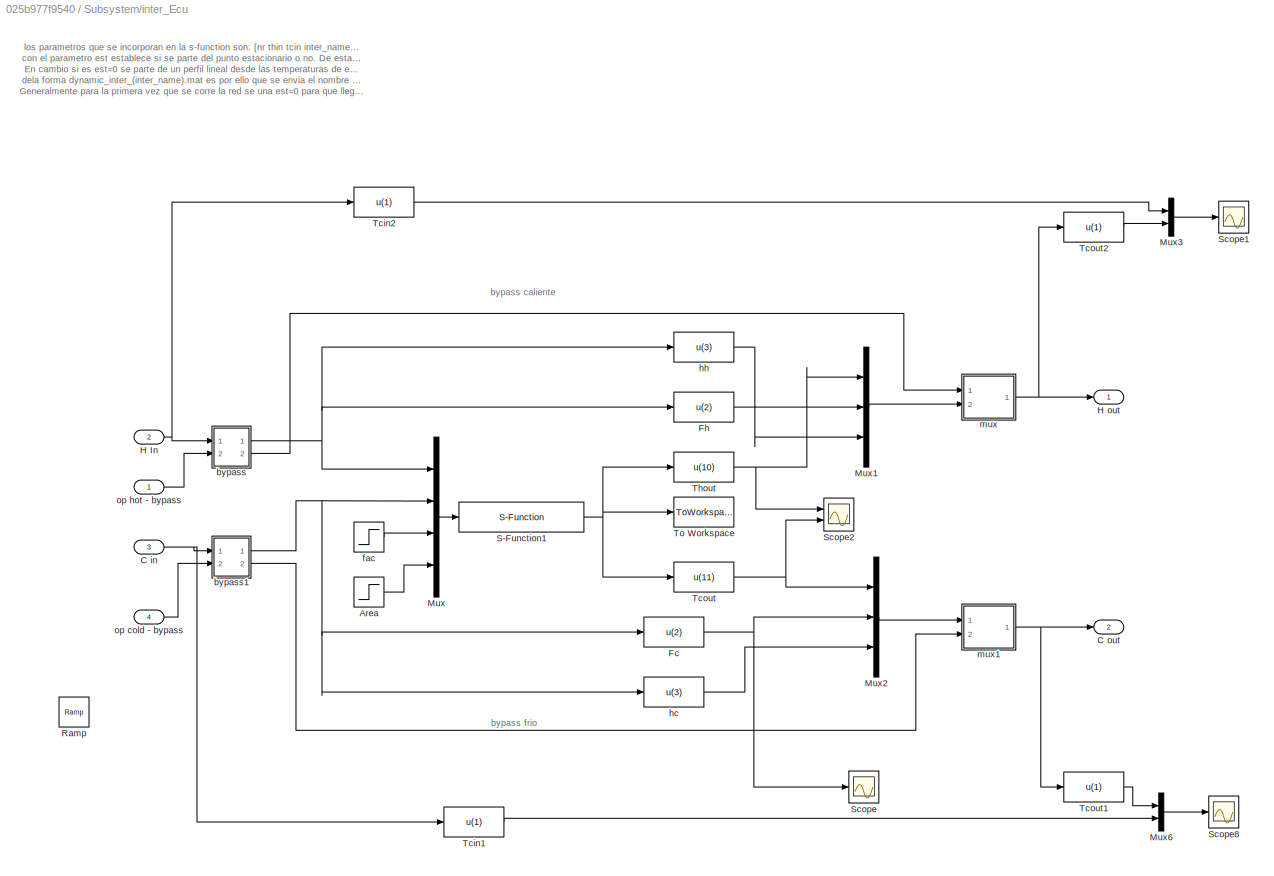
BLOCK [SubSystem] Subsystem/inter_Ecu
  Ports = [4, 2]
  RequestExecContextInheritance = off
BLOCK [Step] Subsystem/inter_Ecu/Area
  After = area4
  Before = area4_ini
  SampleTime = 0
  Time = area_time
BLOCK [Inport] Subsystem/inter_Ecu/C in
  Port = 3
BLOCK [Outport] Subsystem/inter_Ecu/C out
  Port = 2
  VectorParamsAs1DForOutWhenUnconnected = off
BLOCK [Fcn] Subsystem/inter_Ecu/Fc
  Expr = u(2)
BLOCK [Fcn] Subsystem/inter_Ecu/Fh
  Expr = u(2)
BLOCK [Inport] Subsystem/inter_Ecu/H In
  Port = 2
BLOCK [Outport] Subsystem/inter_Ecu/H out
  VectorParamsAs1DForOutWhenUnconnected = off
BLOCK [Mux] Subsystem/inter_Ecu/Mux
  DisplayOption = bar
  Ports = [4, 1]
BLOCK [Mux] Subsystem/inter_Ecu/Mux1
  DisplayOption = bar
  Inputs = 3
  Ports = [3, 1]
BLOCK [Mux] Subsystem/inter_Ecu/Mux2
  DisplayOption = bar
  Inputs = 3
  Ports = [3, 1]
BLOCK [Mux] Subsystem/inter_Ecu/Mux3
  DisplayOption = bar
  Inputs = 2
  Ports = [2, 1]
BLOCK [Mux] Subsystem/inter_Ecu/Mux6
  DisplayOption = bar
  Inputs = 2
  Ports = [2, 1]
BLOCK [Reference] Subsystem/inter_Ecu/Ramp  REF=simulink/Sources/Ramp
  Ports = [0, 1]
  SourceBlock = simulink/Sources/Ramp
  SourceProductBaseCode = SL
  SourceType = Ramp
BLOCK [S-Function] Subsystem/inter_Ecu/S-Function1
  EnableBusSupport = off
  FunctionName = Int_er
  Parameters = 10 410 293 02 2
  Ports = [1, 1]
  SFcnIsStateOwnerBlock = off
  SFunctionDeploymentMode = off
BLOCK [Scope] Subsystem/inter_Ecu/Scope
  Floating = off
  NumInputPorts = 1
  Ports = [1]
  ScopeSpecificationString = Simulink.scopes.TimeScopeBlockCfg('CurrentConfiguration', extmgr.ConfigurationSet(extmgr.Configuration('Core','General UI',true),extmgr.Configuration('Core','Source UI',true),extmgr.Configuration('Sources','WiredSimulink',true,'DataLoggingVariableName','ScopeData2'),extmgr.Configuration('Visuals','Time Domain',true,'SerializedDisplays',{struct('MinYLimReal','20.00000','MaxYLimReal','40.00000','YLa...<+1367ch>
BLOCK [Scope] Subsystem/inter_Ecu/Scope1
  Floating = off
  NumInputPorts = 1
  Ports = [1]
  ScopeSpecificationString = Simulink.scopes.TimeScopeBlockCfg('CurrentConfiguration', extmgr.ConfigurationSet(extmgr.Configuration('Core','General UI',true),extmgr.Configuration('Core','Source UI',true),extmgr.Configuration('Sources','WiredSimulink',true,'DataLoggingVariableName','ScopeData11','DataLoggingSaveFormat','StructureWithTime','DataLoggingLimitDataPoints',true,'DataLoggingDecimation','1','DataLoggingDecimateData',t...<+1714ch>
BLOCK [Scope] Subsystem/inter_Ecu/Scope2
  Floating = off
  NumInputPorts = 2
  Ports = [2]
  ScopeSpecificationString = Simulink.scopes.TimeScopeBlockCfg('CurrentConfiguration', extmgr.ConfigurationSet(extmgr.Configuration('Core','General UI',true),extmgr.Configuration('Core','Source UI',true),extmgr.Configuration('Sources','WiredSimulink',true,'DataLoggingVariableName','ScopeData1'),extmgr.Configuration('Visuals','Time Domain',true,'SerializedDisplays',{struct('MinYLimReal','268.39071','MaxYLimReal','414.6001','YL...<+1455ch>
BLOCK [Scope] Subsystem/inter_Ecu/Scope8
  Floating = off
  NumInputPorts = 1
  Ports = [1]
  ScopeSpecificationString = Simulink.scopes.TimeScopeBlockCfg('CurrentConfiguration', extmgr.ConfigurationSet(extmgr.Configuration('Core','General UI',true),extmgr.Configuration('Core','Source UI',true),extmgr.Configuration('Sources','WiredSimulink',true,'DataLoggingVariableName','ScopeData7','DataLoggingSaveFormat','StructureWithTime','DataLoggingLimitDataPoints',true,'DataLoggingDecimation','1','DataLoggingDecimateData',tr...<+1713ch>
BLOCK [Fcn] Subsystem/inter_Ecu/Tcin1
  Expr = u(1)
BLOCK [Fcn] Subsystem/inter_Ecu/Tcin2
  Expr = u(1)
BLOCK [Fcn] Subsystem/inter_Ecu/Tcout
  Expr = u(11)
BLOCK [Fcn] Subsystem/inter_Ecu/Tcout1
  Expr = u(1)
BLOCK [Fcn] Subsystem/inter_Ecu/Tcout2
  Expr = u(1)
BLOCK [Fcn] Subsystem/inter_Ecu/Thout
  Expr = u(10)
BLOCK [ToWorkspace] Subsystem/inter_Ecu/To Workspace
  MaxDataPoints = inf
  Ports = [1]
  SampleTime = -1
  VariableName = simout_cu1
BLOCK [SubSystem] Subsystem/inter_Ecu/bypass
  Ports = [2, 2]
  RequestExecContextInheritance = off
BLOCK [Outport] Subsystem/inter_Ecu/bypass/ 1
  VectorParamsAs1DForOutWhenUnconnected = off
BLOCK [Outport] Subsystem/inter_Ecu/bypass/ 2
  Port = 2
  VectorParamsAs1DForOutWhenUnconnected = off
BLOCK [Inport] Subsystem/inter_Ecu/bypass/1
BLOCK [Sum] Subsystem/inter_Ecu/bypass/Add
  IconShape = rectangular
  Inputs = +-
  Ports = [2, 1]
BLOCK [Mux] Subsystem/inter_Ecu/bypass/Mux
  DisplayOption = bar
  Inputs = 3
  Ports = [3, 1]
BLOCK [Mux] Subsystem/inter_Ecu/bypass/Mux1
  DisplayOption = bar
  Inputs = 3
  Ports = [3, 1]
BLOCK [Product] Subsystem/inter_Ecu/bypass/Product
  Ports = [2, 1]
BLOCK [Fcn] Subsystem/inter_Ecu/bypass/T
  Expr = u(1)
BLOCK [Fcn] Subsystem/inter_Ecu/bypass/f
  Expr = u(2)
BLOCK [Fcn] Subsystem/inter_Ecu/bypass/h
  Expr = u(3)
BLOCK [Inport] Subsystem/inter_Ecu/bypass/u122
  Port = 2
BLOCK [SubSystem] Subsystem/inter_Ecu/bypass1
  Ports = [2, 2]
  RequestExecContextInheritance = off
BLOCK [Outport] Subsystem/inter_Ecu/bypass1/ 1
  VectorParamsAs1DForOutWhenUnconnected = off
BLOCK [Outport] Subsystem/inter_Ecu/bypass1/ 2
  Port = 2
  VectorParamsAs1DForOutWhenUnconnected = off
BLOCK [Inport] Subsystem/inter_Ecu/bypass1/1
BLOCK [Sum] Subsystem/inter_Ecu/bypass1/Add
  IconShape = rectangular
  Inputs = +-
  Ports = [2, 1]
BLOCK [Mux] Subsystem/inter_Ecu/bypass1/Mux
  DisplayOption = bar
  Inputs = 3
  Ports = [3, 1]
BLOCK [Mux] Subsystem/inter_Ecu/bypass1/Mux1
  DisplayOption = bar
  Inputs = 3
  Ports = [3, 1]
BLOCK [Product] Subsystem/inter_Ecu/bypass1/Product
  Ports = [2, 1]
BLOCK [Scope] Subsystem/inter_Ecu/bypass1/Scope
  Floating = off
  NumInputPorts = 1
  Ports = [1]
  ScopeSpecificationString = Simulink.scopes.TimeScopeBlockCfg('CurrentConfiguration', extmgr.ConfigurationSet(extmgr.Configuration('Core','General UI',true),extmgr.Configuration('Core','Source UI',true),extmgr.Configuration('Sources','WiredSimulink',true,'DataLoggingVariableName','ScopeData3'),extmgr.Configuration('Visuals','Time Domain',true,'SerializedDisplays',{struct('MinYLimReal','-0.07407','MaxYLimReal','0.06536','YLab...<+1410ch>
BLOCK [Fcn] Subsystem/inter_Ecu/bypass1/T
  Expr = u(1)
BLOCK [Fcn] Subsystem/inter_Ecu/bypass1/f
  Expr = u(2)
BLOCK [Fcn] Subsystem/inter_Ecu/bypass1/h
  Expr = u(3)
BLOCK [Inport] Subsystem/inter_Ecu/bypass1/u122
  Port = 2
BLOCK [Step] Subsystem/inter_Ecu/fac
  After = 0
  SampleTime = 0
BLOCK [Fcn] Subsystem/inter_Ecu/hc
  Expr = u(3)
BLOCK [Fcn] Subsystem/inter_Ecu/hh
  Expr = u(3)
BLOCK [SubSystem] Subsystem/inter_Ecu/mux
  Ports = [2, 1]
  RequestExecContextInheritance = off
BLOCK [Sum] Subsystem/inter_Ecu/mux/Add
  IconShape = rectangular
  Ports = [2, 1]
BLOCK [Sum] Subsystem/inter_Ecu/mux/Add1
  IconShape = rectangular
  Ports = [2, 1]
BLOCK [Product] Subsystem/inter_Ecu/mux/Divide
  Inputs = */
  Ports = [2, 1]
BLOCK [Outport] Subsystem/inter_Ecu/mux/F 
  VectorParamsAs1DForOutWhenUnconnected = off
BLOCK [Inport] Subsystem/inter_Ecu/mux/F1
BLOCK [Inport] Subsystem/inter_Ecu/mux/F2
  Port = 2
BLOCK [Mux] Subsystem/inter_Ecu/mux/Mux
  DisplayOption = bar
  Inputs = 3
  Ports = [3, 1]
BLOCK [Product] Subsystem/inter_Ecu/mux/Product
  Ports = [2, 1]
BLOCK [Product] Subsystem/inter_Ecu/mux/Product1
  Ports = [2, 1]
BLOCK [Fcn] Subsystem/inter_Ecu/mux/T
  Expr = u(1)
BLOCK [Fcn] Subsystem/inter_Ecu/mux/T1
  Expr = u(1)
BLOCK [Fcn] Subsystem/inter_Ecu/mux/f
  Expr = u(2)
BLOCK [Fcn] Subsystem/inter_Ecu/mux/f1
  Expr = u(2)
BLOCK [Fcn] Subsystem/inter_Ecu/mux/h
  Expr = u(3)
BLOCK [Fcn] Subsystem/inter_Ecu/mux/h1
  Expr = u(3)
BLOCK [SubSystem] Subsystem/inter_Ecu/mux1
  Ports = [2, 1]
  RequestExecContextInheritance = off
BLOCK [Sum] Subsystem/inter_Ecu/mux1/Add
  IconShape = rectangular
  Ports = [2, 1]
BLOCK [Sum] Subsystem/inter_Ecu/mux1/Add1
  IconShape = rectangular
  Ports = [2, 1]
BLOCK [Product] Subsystem/inter_Ecu/mux1/Divide
  Inputs = */
  Ports = [2, 1]
BLOCK [Outport] Subsystem/inter_Ecu/mux1/F 
  VectorParamsAs1DForOutWhenUnconnected = off
BLOCK [Inport] Subsystem/inter_Ecu/mux1/F1
BLOCK [Inport] Subsystem/inter_Ecu/mux1/F2
  Port = 2
BLOCK [Mux] Subsystem/inter_Ecu/mux1/Mux
  DisplayOption = bar
  Inputs = 3
  Ports = [3, 1]
BLOCK [Product] Subsystem/inter_Ecu/mux1/Product
  Ports = [2, 1]
BLOCK [Product] Subsystem/inter_Ecu/mux1/Product1
  Ports = [2, 1]
BLOCK [Fcn] Subsystem/inter_Ecu/mux1/T
  Expr = u(1)
BLOCK [Fcn] Subsystem/inter_Ecu/mux1/T1
  Expr = u(1)
BLOCK [Fcn] Subsystem/inter_Ecu/mux1/f
  Expr = u(2)
BLOCK [Fcn] Subsystem/inter_Ecu/mux1/f1
  Expr = u(2)
BLOCK [Fcn] Subsystem/inter_Ecu/mux1/h
  Expr = u(3)
BLOCK [Fcn] Subsystem/inter_Ecu/mux1/h1
  Expr = u(3)
BLOCK [Inport] Subsystem/inter_Ecu/op cold - bypass 
  Port = 4
BLOCK [Inport] Subsystem/inter_Ecu/op hot - bypass 
BLOCK [Step] Subsystem/op cold - bypass
  After = 0
  SampleTime = 0
  Time = 0
BLOCK [Step] Subsystem/op hot - bypass
  After = 0
  SampleTime = 0
  Time = 0
BLOCK [Sum] Sum1
  Inputs = |+-
  Ports = [2, 1]
BLOCK [Sum] Sum3
  Inputs = ++|
  Ports = [2, 1]
BLOCK [Sum] Sum4
  Inputs = -+|
  Ports = [2, 1]
BLOCK [Sum] Sum5
  Inputs = ++|
  Ports = [2, 1]
BLOCK [Switch] Switch
  Criteria = u2 > Threshold
  InputSameDT = off
  SaturateOnIntegerOverflow = off
BLOCK [Outport] Tcout 1
  Port = 3
  VectorParamsAs1DForOutWhenUnconnected = off
BLOCK [Outport] Tcout 2
  Port = 4
  VectorParamsAs1DForOutWhenUnconnected = off
BLOCK [Outport] Thout 1
  VectorParamsAs1DForOutWhenUnconnected = off
BLOCK [Outport] Thout 2
  Port = 2
  VectorParamsAs1DForOutWhenUnconnected = off
BLOCK [ToWorkspace] To Workspace
  FixptAsFi = on
  MaxDataPoints = inf
  Ports = [1]
  SampleTime = -1
  VariableName = u_exc
BLOCK [ToWorkspace] To Workspace1
  FixptAsFi = on
  MaxDataPoints = inf
  NameLocation = top
  Ports = [1]
  SampleTime = -1
  VariableName = d_exc
BLOCK [ToWorkspace] To Workspace2
  FixptAsFi = on
  MaxDataPoints = inf
  Ports = [1]
  SampleTime = -1
  VariableName = sp_deseados
BLOCK [ToWorkspace] To Workspace4
  FixptAsFi = on
  MaxDataPoints = inf
  Ports = [1]
  SampleTime = -1
  VariableName = test_planta
BLOCK [ToWorkspace] To Workspace5
  FixptAsFi = on
  MaxDataPoints = inf
  Ports = [1]
  SampleTime = -1
  VariableName = test_error
BLOCK [TransferFcn] Transfer Fcn
  Denominator = [1 1]
BLOCK [TransportDelay] Transport Delay
  Ports = [1, 1]
BLOCK [SubSystem] error
  Ports = [0, 4]
  RequestExecContextInheritance = off
BLOCK [Sum] error/Add
  IconShape = rectangular
  Inputs = +-
  Ports = [2, 1]
BLOCK [Sum] error/Add1
  IconShape = rectangular
  Inputs = +-
  Ports = [2, 1]
BLOCK [Sum] error/Add2
  IconShape = rectangular
  Inputs = +-
  Ports = [2, 1]
BLOCK [Sum] error/Add3
  IconShape = rectangular
  Inputs = +-
  Ports = [2, 1]
BLOCK [From] error/From12
  GotoTag = Thout_1
  TagVisibility = global
BLOCK [From] error/From13
  GotoTag = Tcout_2
  TagVisibility = global
BLOCK [From] error/From14
  GotoTag = Thout_2
  TagVisibility = global
BLOCK [From] error/From15
  GotoTag = Tcout_1
  TagVisibility = global
BLOCK [From] error/From20
  GotoTag = sp_Thout_1
  TagVisibility = global
BLOCK [From] error/From21
  GotoTag = sp_Tcout_1
  TagVisibility = global
BLOCK [From] error/From22
  GotoTag = sp_Thout_2
  TagVisibility = global
BLOCK [From] error/From23
  GotoTag = sp_Tcout_2
  TagVisibility = global
BLOCK [Outport] error/Out1
  VectorParamsAs1DForOutWhenUnconnected = off
BLOCK [Outport] error/Out2
  Port = 2
  VectorParamsAs1DForOutWhenUnconnected = off
BLOCK [Outport] error/Out3
  Port = 3
  VectorParamsAs1DForOutWhenUnconnected = off
BLOCK [Outport] error/Out4
  Port = 4
  VectorParamsAs1DForOutWhenUnconnected = off
ANNOTATION Subsystem/inter_E1: bypass caliente
ANNOTATION Subsystem/inter_E1: bypass frio
ANNOTATION Subsystem/inter_E1: los parametros que se incorporan en la s-function son: [nr thin tcin inter_name est] con el parametro est establece si se parte del punto estacionario o no. De esta manera si est= 1 se parte del putno guardado (para cada intercambiador) de estado estacionario. Los mismos deben estar en un .mat En cambio si es est=0 se parte de un perfil lineal desde las temperaturas de entrada para la corriente ca...<+402ch>
ANNOTATION Subsystem/inter_E1/bypass: la corriente 1 es la que se introduce al intercambiador
ANNOTATION Subsystem/inter_E1/bypass: la corriete 2 es la corriente del byapass
ANNOTATION Subsystem/inter_E1/bypass1: la corriente 1 es la que se introduce al intercambiador
ANNOTATION Subsystem/inter_E1/bypass1: la corriete 2 es la corriente del byapass
ANNOTATION Subsystem/inter_E2: bypass caliente
ANNOTATION Subsystem/inter_E2: bypass frio
ANNOTATION Subsystem/inter_E2: los parametros que se incorporan en la s-function son: [nr thin tcin inter_name est] con el parametro est establece si se parte del punto estacionario o no. De esta manera si est= 1 se parte del putno guardado (para cada intercambiador) de estado estacionario. Los mismos deben estar en un .mat En cambio si es est=0 se parte de un perfil lineal desde las temperaturas de entrada para la corriente ca...<+402ch>
ANNOTATION Subsystem/inter_E2/bypass: la corriente 1 es la que se introduce al intercambiador
ANNOTATION Subsystem/inter_E2/bypass: la corriete 2 es la corriente del byapass
ANNOTATION Subsystem/inter_E2/bypass1: la corriente 1 es la que se introduce al intercambiador
ANNOTATION Subsystem/inter_E2/bypass1: la corriete 2 es la corriente del byapass
ANNOTATION Subsystem/inter_E3: bypass caliente
ANNOTATION Subsystem/inter_E3: bypass frio
ANNOTATION Subsystem/inter_E3: los parametros que se incorporan en la s-function son: [nr thin tcin inter_name est] con el parametro est establece si se parte del punto estacionario o no. De esta manera si est= 1 se parte del putno guardado (para cada intercambiador) de estado estacionario. Los mismos deben estar en un .mat En cambio si es est=0 se parte de un perfil lineal desde las temperaturas de entrada para la corriente ca...<+402ch>
ANNOTATION Subsystem/inter_E3/bypass: la corriente 1 es la que se introduce al intercambiador
ANNOTATION Subsystem/inter_E3/bypass: la corriete 2 es la corriente del byapass
ANNOTATION Subsystem/inter_E3/bypass1: la corriente 1 es la que se introduce al intercambiador
ANNOTATION Subsystem/inter_E3/bypass1: la corriete 2 es la corriente del byapass
ANNOTATION Subsystem/inter_Ecu: bypass caliente
ANNOTATION Subsystem/inter_Ecu: bypass frio
ANNOTATION Subsystem/inter_Ecu: los parametros que se incorporan en la s-function son: [nr thin tcin inter_name est] con el parametro est establece si se parte del punto estacionario o no. De esta manera si est= 1 se parte del putno guardado (para cada intercambiador) de estado estacionario. Los mismos deben estar en un .mat En cambio si es est=0 se parte de un perfil lineal desde las temperaturas de entrada para la corriente ca...<+402ch>
ANNOTATION Subsystem/inter_Ecu/bypass: la corriente 1 es la que se introduce al intercambiador
ANNOTATION Subsystem/inter_Ecu/bypass: la corriete 2 es la corriente del byapass
ANNOTATION Subsystem/inter_Ecu/bypass1: la corriente 1 es la que se introduce al intercambiador
ANNOTATION Subsystem/inter_Ecu/bypass1: la corriete 2 es la corriente del byapass
LINE C1/Add2:1 -> C1/Out1:1
LINE C1/Add3:1 -> C1/Out2:1
LINE C1/Constant3:1 -> C1/Add2:1
LINE C1/Constant4:1 -> C1/Add3:1
LINE C1/Tcin 1:1 -> C1/Add2:2
LINE C1/fcin 1:1 -> C1/Add3:2
NET C1:1 -> Mux8:5, Subsystem:12
NET C1:2 -> Mux8:6, Subsystem:13
LINE C2 /Add4:1 -> C2 /Out1:1
LINE C2 /Add5:1 -> C2 /Out2:1
LINE C2 /Constant5:1 -> C2 /Add4:1
LINE C2 /Constant6:1 -> C2 /Add5:1
LINE C2 /Tcin 2:1 -> C2 /Add4:2
LINE C2 /fcin 2:1 -> C2 /Add5:2
NET C2 :1 -> Mux8:7, Subsystem:14
NET C2 :2 -> Mux8:8, Subsystem:15
NET Constant1:1 -> Mux10:4, Mux10:5, Mux10:6
LINE Demux1:1 -> Subsystem:1
LINE Demux1:2 -> Subsystem:2
LINE Demux1:3 -> Subsystem:3
LINE Demux1:4 -> Subsystem:4
LINE Demux1:5 -> Subsystem:5
LINE Demux1:6 -> Subsystem:6
LINE Demux1:7 -> Subsystem:7
LINE Demux2:1 -> Scope7:1
LINE Demux2:2 -> Scope7:2
LINE Demux2:3 -> Scope7:3
LINE Demux2:4 -> Scope7:4
LINE Demux3:1 -> Mux10:1
LINE Demux3:2 -> Mux10:7
LINE Demux3:3 -> Mux10:2
LINE Demux3:4 -> Mux10:3
LINE From10:1 -> Mux4:1
LINE From11:1 -> Mux:4
LINE From12:1 -> Mux9:4
LINE From13:1 -> Mux7:1
LINE From14:1 -> Mux7:4
LINE From16:1 -> Mux1:2
LINE From17:1 -> Mux3:2
LINE From18:1 -> Mux2:2
LINE From19:1 -> Mux4:2
LINE From1:1 -> Mux1:1
LINE From23:1 -> Mux7:2
LINE From24:1 -> Mux7:3
LINE From2:1 -> Mux:1
LINE From3:1 -> Mux9:1
LINE From4:1 -> Mux2:1
LINE From5:1 -> Mux:2
LINE From6:1 -> Mux9:2
LINE From7:1 -> Mux3:1
LINE From8:1 -> Mux:3
LINE From9:1 -> Mux9:3
LINE H1 /Add1:1 -> H1 /Out2:1
LINE H1 /Add:1 -> H1 /Out1:1
LINE H1 /Constant1:1 -> H1 /Add:1
LINE H1 /Constant2:1 -> H1 /Add1:1
LINE H1 /Thin 1:1 -> H1 /Add:2
LINE H1 /fhin 1:1 -> H1 /Add1:2
NET H1 :1 -> Mux8:1, Subsystem:8
NET H1 :2 -> Mux8:2, Subsystem:9
LINE H2/Add1:1 -> H2/Out2:1
LINE H2/Add:1 -> H2/Out1:1
LINE H2/Constant1:1 -> H2/Add:1
LINE H2/Constant2:1 -> H2/Add1:1
LINE H2/Thin 2:1 -> H2/Add:2
LINE H2/fhin 2:1 -> H2/Add1:2
NET H2:1 -> Mux8:3, Subsystem:10
NET H2:2 -> Mux8:4, Subsystem:11
LINE LTI System1:1 -> Demux3:1
LINE Mux10:1 -> Sum3:2
NET Mux1:1 -> Scope1:1, Scope9:1
NET Mux2:1 -> Scope4:1, Scope9:2
NET Mux3:1 -> Scope2:1, Scope9:3
NET Mux4:1 -> Scope3:1, Scope9:4
LINE Mux5:1 -> Display5:1
LINE Mux6:1 -> To Workspace:1
NET Mux7:1 -> Demux2:1, Scope11:1, Sum1:2
LINE Mux8:1 -> To Workspace1:1
NET Mux9:1 -> Sum4:2, To Workspace2:1
LINE Mux:1 -> Display8:1
LINE Step10:1 -> Mux6:1
LINE Step11:1 -> Mux6:2
LINE Step12:1 -> Mux6:3
LINE Step13:1 -> Mux6:4
LINE Step14:1 -> Mux6:5
LINE Step15:1 -> Mux6:6
LINE Step16:1 -> Mux6:7
LINE Step17:1 -> Goto7:1
LINE Step18:1 -> Goto6:1
LINE Step19:1 -> Goto8:1
LINE Step1:1 -> Goto5:1
LINE Step20:1 -> Sum3:1
LINE Step21:1 -> Sum4:1
LINE Step22:1 -> Sum5:1
LINE Step2:1 -> Sum5:2
LINE Step3:1 -> H1 :2
LINE Step4:1 -> H2:1
LINE Step5:1 -> H2:2
LINE Step6:1 -> C1:1
LINE Step7:1 -> C1:2
LINE Step8:1 -> C2 :1
LINE Step9:1 -> C2 :2
LINE Subsystem/Add1:1 -> Subsystem/inter_E1:4
LINE Subsystem/Add2:1 -> Subsystem/inter_E2:1
LINE Subsystem/Add3:1 -> Subsystem/inter_E3:1
LINE Subsystem/Add4:1 -> Subsystem/inter_E2:4
LINE Subsystem/Add5:1 -> Subsystem/inter_E3:4
NET Subsystem/Add6:1 -> Subsystem/Corriente Cu1:1, Subsystem/Scope4:1
LINE Subsystem/Add:1 -> Subsystem/inter_E1:1
LINE Subsystem/Constant1:1 -> Subsystem/Add2:1
LINE Subsystem/Constant2:1 -> Subsystem/Add3:1
LINE Subsystem/Constant3:1 -> Subsystem/Add1:1
LINE Subsystem/Constant4:1 -> Subsystem/Add4:2
LINE Subsystem/Constant5:1 -> Subsystem/Add5:2
LINE Subsystem/Constant6:1 -> Subsystem/Add6:1
LINE Subsystem/Constant:1 -> Subsystem/Add:1
LINE Subsystem/Corriente C1/In1:1 -> Subsystem/Corriente C1/Mux5:1
LINE Subsystem/Corriente C1/In2:1 -> Subsystem/Corriente C1/Mux5:2
LINE Subsystem/Corriente C1/Mux5:1 -> Subsystem/Corriente C1/Out1:1
LINE Subsystem/Corriente C1/fc:1 -> Subsystem/Corriente C1/Terminator:1
LINE Subsystem/Corriente C1/hc:1 -> Subsystem/Corriente C1/Mux5:3
LINE Subsystem/Corriente C1/tc:1 -> Subsystem/Corriente C1/Terminator1:1
LINE Subsystem/Corriente C1:1 -> Subsystem/inter_E1:3
LINE Subsystem/Corriente C2/In1:1 -> Subsystem/Corriente C2/Mux5:1
LINE Subsystem/Corriente C2/In2:1 -> Subsystem/Corriente C2/Mux5:2
LINE Subsystem/Corriente C2/Mux5:1 -> Subsystem/Corriente C2/Out1:1
LINE Subsystem/Corriente C2/fh:1 -> Subsystem/Corriente C2/Terminator:1
LINE Subsystem/Corriente C2/hh:1 -> Subsystem/Corriente C2/Mux5:3
LINE Subsystem/Corriente C2/th:1 -> Subsystem/Corriente C2/Terminator1:1
LINE Subsystem/Corriente C2:1 -> Subsystem/inter_E3:3
LINE Subsystem/Corriente Cu1/Mux5:1 -> Subsystem/Corriente Cu1/Out1:1
LINE Subsystem/Corriente Cu1/fh:1 -> Subsystem/Corriente Cu1/Mux5:2
LINE Subsystem/Corriente Cu1/hh:1 -> Subsystem/Corriente Cu1/Mux5:3
LINE Subsystem/Corriente Cu1/th:1 -> Subsystem/Corriente Cu1/Mux5:1
NET Subsystem/Corriente Cu1:1 -> Subsystem/Scope4:2, Subsystem/inter_Ecu:3
LINE Subsystem/Corriente H1/In1:1 -> Subsystem/Corriente H1/Mux5:1
LINE Subsystem/Corriente H1/In2:1 -> Subsystem/Corriente H1/Mux5:2
LINE Subsystem/Corriente H1/Mux5:1 -> Subsystem/Corriente H1/Out1:1
LINE Subsystem/Corriente H1/fh:1 -> Subsystem/Corriente H1/Terminator1:1
LINE Subsystem/Corriente H1/hh:1 -> Subsystem/Corriente H1/Mux5:3
LINE Subsystem/Corriente H1/th:1 -> Subsystem/Corriente H1/Terminator:1
LINE Subsystem/Corriente H1:1 -> Subsystem/inter_E1:2
LINE Subsystem/Corriente H2/In1:1 -> Subsystem/Corriente H2/Mux5:1
LINE Subsystem/Corriente H2/In2:1 -> Subsystem/Corriente H2/Mux5:2
LINE Subsystem/Corriente H2/Mux5:1 -> Subsystem/Corriente H2/Out1:1
LINE Subsystem/Corriente H2/fh:1 -> Subsystem/Corriente H2/Terminator1:1
LINE Subsystem/Corriente H2/hh:1 -> Subsystem/Corriente H2/Mux5:3
LINE Subsystem/Corriente H2/th:1 -> Subsystem/Corriente H2/Terminator:1
LINE Subsystem/Corriente H2:1 -> Subsystem/inter_E2:2
NET Subsystem/Fcn1:1 -> Subsystem/Scope3:1, Subsystem/Tcu out:1
LINE Subsystem/Fcn2:1 -> Subsystem/Tcout 1:1
LINE Subsystem/Fcn3:1 -> Subsystem/Thout 1:1
LINE Subsystem/Fcn4:1 -> Subsystem/Thout 2:1
LINE Subsystem/Fcn:1 -> Subsystem/Tcout 2:1
LINE Subsystem/Tcin 1:1 -> Subsystem/Corriente C1:1
LINE Subsystem/Tcin 2:1 -> Subsystem/Corriente C2:1
LINE Subsystem/Thin 1:1 -> Subsystem/Corriente H1:1
LINE Subsystem/Thin 2:1 -> Subsystem/Corriente H2:1
LINE Subsystem/U - fcu:1 -> Subsystem/Add6:2
LINE Subsystem/U - uc 112:1 -> Subsystem/Add1:2
LINE Subsystem/U - uc 211:1 -> Subsystem/Add4:1
LINE Subsystem/U - uc 222:1 -> Subsystem/Add5:1
LINE Subsystem/U - uh 112:1 -> Subsystem/Add:2
LINE Subsystem/U - uh 211:1 -> Subsystem/Add2:2
LINE Subsystem/U - uh 222:1 -> Subsystem/Add3:2
LINE Subsystem/fcin 1:1 -> Subsystem/Corriente C1:2
LINE Subsystem/fcin 2:1 -> Subsystem/Corriente C2:2
LINE Subsystem/fhin 1:1 -> Subsystem/Corriente H1:2
LINE Subsystem/fhin 2:1 -> Subsystem/Corriente H2:2
LINE Subsystem/inter_E1/Area:1 -> Subsystem/inter_E1/Mux:4
NET Subsystem/inter_E1/C in:1 -> Subsystem/inter_E1/Tcin1:1, Subsystem/inter_E1/bypass1:1
LINE Subsystem/inter_E1/Fc:1 -> Subsystem/inter_E1/Mux2:2
LINE Subsystem/inter_E1/Fh:1 -> Subsystem/inter_E1/Mux1:2
NET Subsystem/inter_E1/H In:1 -> Subsystem/inter_E1/Tcin2:1, Subsystem/inter_E1/bypass:1
LINE Subsystem/inter_E1/Mux1:1 -> Subsystem/inter_E1/mux:2
LINE Subsystem/inter_E1/Mux2:1 -> Subsystem/inter_E1/mux1:1
LINE Subsystem/inter_E1/Mux3:1 -> Subsystem/inter_E1/Scope1:1
LINE Subsystem/inter_E1/Mux6:1 -> Subsystem/inter_E1/Scope8:1
LINE Subsystem/inter_E1/Mux:1 -> Subsystem/inter_E1/S-Function2:1
NET Subsystem/inter_E1/S-Function2:1 -> Subsystem/inter_E1/Tcout:1, Subsystem/inter_E1/Thout:1, Subsystem/inter_E1/To Workspace:1
LINE Subsystem/inter_E1/Tcin1:1 -> Subsystem/inter_E1/Mux6:2
LINE Subsystem/inter_E1/Tcin2:1 -> Subsystem/inter_E1/Mux3:1
LINE Subsystem/inter_E1/Tcout1:1 -> Subsystem/inter_E1/Mux6:1
LINE Subsystem/inter_E1/Tcout2:1 -> Subsystem/inter_E1/Mux3:2
LINE Subsystem/inter_E1/Tcout:1 -> Subsystem/inter_E1/Mux2:1
LINE Subsystem/inter_E1/Thout:1 -> Subsystem/inter_E1/Mux1:1
NET Subsystem/inter_E1/bypass/1:1 -> Subsystem/inter_E1/bypass/T:1, Subsystem/inter_E1/bypass/f:1, Subsystem/inter_E1/bypass/h:1
LINE Subsystem/inter_E1/bypass/Add:1 -> Subsystem/inter_E1/bypass/Mux:2
LINE Subsystem/inter_E1/bypass/Mux1:1 -> Subsystem/inter_E1/bypass/ 2:1
LINE Subsystem/inter_E1/bypass/Mux:1 -> Subsystem/inter_E1/bypass/ 1:1
NET Subsystem/inter_E1/bypass/Product:1 -> Subsystem/inter_E1/bypass/Add:2, Subsystem/inter_E1/bypass/Mux1:2
NET Subsystem/inter_E1/bypass/T:1 -> Subsystem/inter_E1/bypass/Mux1:1, Subsystem/inter_E1/bypass/Mux:1
NET Subsystem/inter_E1/bypass/f:1 -> Subsystem/inter_E1/bypass/Add:1, Subsystem/inter_E1/bypass/Product:2
NET Subsystem/inter_E1/bypass/h:1 -> Subsystem/inter_E1/bypass/Mux1:3, Subsystem/inter_E1/bypass/Mux:3
LINE Subsystem/inter_E1/bypass/u122:1 -> Subsystem/inter_E1/bypass/Product:1
NET Subsystem/inter_E1/bypass1/1:1 -> Subsystem/inter_E1/bypass1/T:1, Subsystem/inter_E1/bypass1/f:1, Subsystem/inter_E1/bypass1/h:1
LINE Subsystem/inter_E1/bypass1/Add:1 -> Subsystem/inter_E1/bypass1/Mux:2
LINE Subsystem/inter_E1/bypass1/Mux1:1 -> Subsystem/inter_E1/bypass1/ 2:1
LINE Subsystem/inter_E1/bypass1/Mux:1 -> Subsystem/inter_E1/bypass1/ 1:1
NET Subsystem/inter_E1/bypass1/Product:1 -> Subsystem/inter_E1/bypass1/Add:2, Subsystem/inter_E1/bypass1/Mux1:2
NET Subsystem/inter_E1/bypass1/T:1 -> Subsystem/inter_E1/bypass1/Mux1:1, Subsystem/inter_E1/bypass1/Mux:1
NET Subsystem/inter_E1/bypass1/f:1 -> Subsystem/inter_E1/bypass1/Add:1, Subsystem/inter_E1/bypass1/Product:2
NET Subsystem/inter_E1/bypass1/h:1 -> Subsystem/inter_E1/bypass1/Mux1:3, Subsystem/inter_E1/bypass1/Mux:3
LINE Subsystem/inter_E1/bypass1/u122:1 -> Subsystem/inter_E1/bypass1/Product:1
NET Subsystem/inter_E1/bypass1:1 -> Subsystem/inter_E1/Fc:1, Subsystem/inter_E1/Mux:2, Subsystem/inter_E1/hc:1
LINE Subsystem/inter_E1/bypass1:2 -> Subsystem/inter_E1/mux1:2
NET Subsystem/inter_E1/bypass:1 -> Subsystem/inter_E1/Fh:1, Subsystem/inter_E1/Mux:1, Subsystem/inter_E1/hh:1
LINE Subsystem/inter_E1/bypass:2 -> Subsystem/inter_E1/mux:1
LINE Subsystem/inter_E1/fac:1 -> Subsystem/inter_E1/Mux:3
LINE Subsystem/inter_E1/hc:1 -> Subsystem/inter_E1/Mux2:3
LINE Subsystem/inter_E1/hh:1 -> Subsystem/inter_E1/Mux1:3
LINE Subsystem/inter_E1/mux/Add1:1 -> Subsystem/inter_E1/mux/Divide:1
NET Subsystem/inter_E1/mux/Add:1 -> Subsystem/inter_E1/mux/Divide:2, Subsystem/inter_E1/mux/Mux:2
LINE Subsystem/inter_E1/mux/Divide:1 -> Subsystem/inter_E1/mux/Mux:1
NET Subsystem/inter_E1/mux/F1:1 -> Subsystem/inter_E1/mux/T:1, Subsystem/inter_E1/mux/f:1, Subsystem/inter_E1/mux/h:1
NET Subsystem/inter_E1/mux/F2:1 -> Subsystem/inter_E1/mux/T1:1, Subsystem/inter_E1/mux/f1:1, Subsystem/inter_E1/mux/h1:1
LINE Subsystem/inter_E1/mux/Mux:1 -> Subsystem/inter_E1/mux/F :1
LINE Subsystem/inter_E1/mux/Product1:1 -> Subsystem/inter_E1/mux/Add1:2
LINE Subsystem/inter_E1/mux/Product:1 -> Subsystem/inter_E1/mux/Add1:1
LINE Subsystem/inter_E1/mux/T1:1 -> Subsystem/inter_E1/mux/Product1:1
LINE Subsystem/inter_E1/mux/T:1 -> Subsystem/inter_E1/mux/Product:1
NET Subsystem/inter_E1/mux/f1:1 -> Subsystem/inter_E1/mux/Add:2, Subsystem/inter_E1/mux/Product1:2
NET Subsystem/inter_E1/mux/f:1 -> Subsystem/inter_E1/mux/Add:1, Subsystem/inter_E1/mux/Product:2
LINE Subsystem/inter_E1/mux/h:1 -> Subsystem/inter_E1/mux/Mux:3
LINE Subsystem/inter_E1/mux1/Add1:1 -> Subsystem/inter_E1/mux1/Divide:1
NET Subsystem/inter_E1/mux1/Add:1 -> Subsystem/inter_E1/mux1/Divide:2, Subsystem/inter_E1/mux1/Mux:2
LINE Subsystem/inter_E1/mux1/Divide:1 -> Subsystem/inter_E1/mux1/Mux:1
NET Subsystem/inter_E1/mux1/F1:1 -> Subsystem/inter_E1/mux1/T:1, Subsystem/inter_E1/mux1/f:1, Subsystem/inter_E1/mux1/h:1
NET Subsystem/inter_E1/mux1/F2:1 -> Subsystem/inter_E1/mux1/T1:1, Subsystem/inter_E1/mux1/f1:1, Subsystem/inter_E1/mux1/h1:1
LINE Subsystem/inter_E1/mux1/Mux:1 -> Subsystem/inter_E1/mux1/F :1
LINE Subsystem/inter_E1/mux1/Product1:1 -> Subsystem/inter_E1/mux1/Add1:2
LINE Subsystem/inter_E1/mux1/Product:1 -> Subsystem/inter_E1/mux1/Add1:1
LINE Subsystem/inter_E1/mux1/T1:1 -> Subsystem/inter_E1/mux1/Product1:1
LINE Subsystem/inter_E1/mux1/T:1 -> Subsystem/inter_E1/mux1/Product:1
NET Subsystem/inter_E1/mux1/f1:1 -> Subsystem/inter_E1/mux1/Add:2, Subsystem/inter_E1/mux1/Product1:2
NET Subsystem/inter_E1/mux1/f:1 -> Subsystem/inter_E1/mux1/Add:1, Subsystem/inter_E1/mux1/Product:2
LINE Subsystem/inter_E1/mux1/h:1 -> Subsystem/inter_E1/mux1/Mux:3
NET Subsystem/inter_E1/mux1:1 -> Subsystem/inter_E1/C out:1, Subsystem/inter_E1/Tcout1:1
NET Subsystem/inter_E1/mux:1 -> Subsystem/inter_E1/H out:1, Subsystem/inter_E1/Tcout2:1
LINE Subsystem/inter_E1/op cold - bypass :1 -> Subsystem/inter_E1/bypass1:2
LINE Subsystem/inter_E1/op hot - bypass :1 -> Subsystem/inter_E1/bypass:2
LINE Subsystem/inter_E1:1 -> Subsystem/Fcn3:1
NET Subsystem/inter_E1:2 -> Subsystem/Scope:1, Subsystem/inter_E2:3
LINE Subsystem/inter_E2/Area:1 -> Subsystem/inter_E2/Mux:4
NET Subsystem/inter_E2/C in:1 -> Subsystem/inter_E2/Tcin1:1, Subsystem/inter_E2/bypass1:1
LINE Subsystem/inter_E2/Fc:1 -> Subsystem/inter_E2/Mux2:2
LINE Subsystem/inter_E2/Fh:1 -> Subsystem/inter_E2/Mux1:2
NET Subsystem/inter_E2/H In:1 -> Subsystem/inter_E2/Tcin2:1, Subsystem/inter_E2/bypass:1
LINE Subsystem/inter_E2/Mux1:1 -> Subsystem/inter_E2/mux:2
LINE Subsystem/inter_E2/Mux2:1 -> Subsystem/inter_E2/mux1:1
LINE Subsystem/inter_E2/Mux3:1 -> Subsystem/inter_E2/Scope1:1
LINE Subsystem/inter_E2/Mux6:1 -> Subsystem/inter_E2/Scope8:1
LINE Subsystem/inter_E2/Mux:1 -> Subsystem/inter_E2/S-Function2:1
NET Subsystem/inter_E2/S-Function2:1 -> Subsystem/inter_E2/Tcout:1, Subsystem/inter_E2/Thout:1, Subsystem/inter_E2/To Workspace:1
LINE Subsystem/inter_E2/Tcin1:1 -> Subsystem/inter_E2/Mux6:2
LINE Subsystem/inter_E2/Tcin2:1 -> Subsystem/inter_E2/Mux3:1
LINE Subsystem/inter_E2/Tcout1:1 -> Subsystem/inter_E2/Mux6:1
LINE Subsystem/inter_E2/Tcout2:1 -> Subsystem/inter_E2/Mux3:2
LINE Subsystem/inter_E2/Tcout:1 -> Subsystem/inter_E2/Mux2:1
LINE Subsystem/inter_E2/Thout:1 -> Subsystem/inter_E2/Mux1:1
NET Subsystem/inter_E2/bypass/1:1 -> Subsystem/inter_E2/bypass/T:1, Subsystem/inter_E2/bypass/f:1, Subsystem/inter_E2/bypass/h:1
LINE Subsystem/inter_E2/bypass/Add:1 -> Subsystem/inter_E2/bypass/Mux:2
LINE Subsystem/inter_E2/bypass/Mux1:1 -> Subsystem/inter_E2/bypass/ 2:1
LINE Subsystem/inter_E2/bypass/Mux:1 -> Subsystem/inter_E2/bypass/ 1:1
NET Subsystem/inter_E2/bypass/Product:1 -> Subsystem/inter_E2/bypass/Add:2, Subsystem/inter_E2/bypass/Mux1:2
NET Subsystem/inter_E2/bypass/T:1 -> Subsystem/inter_E2/bypass/Mux1:1, Subsystem/inter_E2/bypass/Mux:1
NET Subsystem/inter_E2/bypass/f:1 -> Subsystem/inter_E2/bypass/Add:1, Subsystem/inter_E2/bypass/Product:2
NET Subsystem/inter_E2/bypass/h:1 -> Subsystem/inter_E2/bypass/Mux1:3, Subsystem/inter_E2/bypass/Mux:3
LINE Subsystem/inter_E2/bypass/u122:1 -> Subsystem/inter_E2/bypass/Product:1
NET Subsystem/inter_E2/bypass1/1:1 -> Subsystem/inter_E2/bypass1/T:1, Subsystem/inter_E2/bypass1/f:1, Subsystem/inter_E2/bypass1/h:1
LINE Subsystem/inter_E2/bypass1/Add:1 -> Subsystem/inter_E2/bypass1/Mux:2
LINE Subsystem/inter_E2/bypass1/Mux1:1 -> Subsystem/inter_E2/bypass1/ 2:1
LINE Subsystem/inter_E2/bypass1/Mux:1 -> Subsystem/inter_E2/bypass1/ 1:1
NET Subsystem/inter_E2/bypass1/Product:1 -> Subsystem/inter_E2/bypass1/Add:2, Subsystem/inter_E2/bypass1/Mux1:2
NET Subsystem/inter_E2/bypass1/T:1 -> Subsystem/inter_E2/bypass1/Mux1:1, Subsystem/inter_E2/bypass1/Mux:1
NET Subsystem/inter_E2/bypass1/f:1 -> Subsystem/inter_E2/bypass1/Add:1, Subsystem/inter_E2/bypass1/Product:2
NET Subsystem/inter_E2/bypass1/h:1 -> Subsystem/inter_E2/bypass1/Mux1:3, Subsystem/inter_E2/bypass1/Mux:3
LINE Subsystem/inter_E2/bypass1/u122:1 -> Subsystem/inter_E2/bypass1/Product:1
NET Subsystem/inter_E2/bypass1:1 -> Subsystem/inter_E2/Fc:1, Subsystem/inter_E2/Mux:2, Subsystem/inter_E2/hc:1
LINE Subsystem/inter_E2/bypass1:2 -> Subsystem/inter_E2/mux1:2
NET Subsystem/inter_E2/bypass:1 -> Subsystem/inter_E2/Fh:1, Subsystem/inter_E2/Mux:1, Subsystem/inter_E2/hh:1
LINE Subsystem/inter_E2/bypass:2 -> Subsystem/inter_E2/mux:1
LINE Subsystem/inter_E2/fac:1 -> Subsystem/inter_E2/Mux:3
LINE Subsystem/inter_E2/hc:1 -> Subsystem/inter_E2/Mux2:3
LINE Subsystem/inter_E2/hh:1 -> Subsystem/inter_E2/Mux1:3
LINE Subsystem/inter_E2/mux/Add1:1 -> Subsystem/inter_E2/mux/Divide:1
NET Subsystem/inter_E2/mux/Add:1 -> Subsystem/inter_E2/mux/Divide:2, Subsystem/inter_E2/mux/Mux:2
LINE Subsystem/inter_E2/mux/Divide:1 -> Subsystem/inter_E2/mux/Mux:1
NET Subsystem/inter_E2/mux/F1:1 -> Subsystem/inter_E2/mux/T:1, Subsystem/inter_E2/mux/f:1, Subsystem/inter_E2/mux/h:1
NET Subsystem/inter_E2/mux/F2:1 -> Subsystem/inter_E2/mux/T1:1, Subsystem/inter_E2/mux/f1:1, Subsystem/inter_E2/mux/h1:1
LINE Subsystem/inter_E2/mux/Mux:1 -> Subsystem/inter_E2/mux/F :1
LINE Subsystem/inter_E2/mux/Product1:1 -> Subsystem/inter_E2/mux/Add1:2
LINE Subsystem/inter_E2/mux/Product:1 -> Subsystem/inter_E2/mux/Add1:1
LINE Subsystem/inter_E2/mux/T1:1 -> Subsystem/inter_E2/mux/Product1:1
LINE Subsystem/inter_E2/mux/T:1 -> Subsystem/inter_E2/mux/Product:1
NET Subsystem/inter_E2/mux/f1:1 -> Subsystem/inter_E2/mux/Add:2, Subsystem/inter_E2/mux/Product1:2
NET Subsystem/inter_E2/mux/f:1 -> Subsystem/inter_E2/mux/Add:1, Subsystem/inter_E2/mux/Product:2
LINE Subsystem/inter_E2/mux/h:1 -> Subsystem/inter_E2/mux/Mux:3
LINE Subsystem/inter_E2/mux1/Add1:1 -> Subsystem/inter_E2/mux1/Divide:1
NET Subsystem/inter_E2/mux1/Add:1 -> Subsystem/inter_E2/mux1/Divide:2, Subsystem/inter_E2/mux1/Mux:2
LINE Subsystem/inter_E2/mux1/Divide:1 -> Subsystem/inter_E2/mux1/Mux:1
NET Subsystem/inter_E2/mux1/F1:1 -> Subsystem/inter_E2/mux1/T:1, Subsystem/inter_E2/mux1/f:1, Subsystem/inter_E2/mux1/h:1
NET Subsystem/inter_E2/mux1/F2:1 -> Subsystem/inter_E2/mux1/T1:1, Subsystem/inter_E2/mux1/f1:1, Subsystem/inter_E2/mux1/h1:1
LINE Subsystem/inter_E2/mux1/Mux:1 -> Subsystem/inter_E2/mux1/F :1
LINE Subsystem/inter_E2/mux1/Product1:1 -> Subsystem/inter_E2/mux1/Add1:2
LINE Subsystem/inter_E2/mux1/Product:1 -> Subsystem/inter_E2/mux1/Add1:1
LINE Subsystem/inter_E2/mux1/T1:1 -> Subsystem/inter_E2/mux1/Product1:1
LINE Subsystem/inter_E2/mux1/T:1 -> Subsystem/inter_E2/mux1/Product:1
NET Subsystem/inter_E2/mux1/f1:1 -> Subsystem/inter_E2/mux1/Add:2, Subsystem/inter_E2/mux1/Product1:2
NET Subsystem/inter_E2/mux1/f:1 -> Subsystem/inter_E2/mux1/Add:1, Subsystem/inter_E2/mux1/Product:2
LINE Subsystem/inter_E2/mux1/h:1 -> Subsystem/inter_E2/mux1/Mux:3
NET Subsystem/inter_E2/mux1:1 -> Subsystem/inter_E2/C out:1, Subsystem/inter_E2/Tcout1:1
NET Subsystem/inter_E2/mux:1 -> Subsystem/inter_E2/H out:1, Subsystem/inter_E2/Tcout2:1
LINE Subsystem/inter_E2/op cold - bypass :1 -> Subsystem/inter_E2/bypass1:2
LINE Subsystem/inter_E2/op hot - bypass :1 -> Subsystem/inter_E2/bypass:2
NET Subsystem/inter_E2:1 -> Subsystem/Scope1:1, Subsystem/inter_E3:2
LINE Subsystem/inter_E2:2 -> Subsystem/Fcn2:1
LINE Subsystem/inter_E3/Area:1 -> Subsystem/inter_E3/Mux:4
NET Subsystem/inter_E3/C in:1 -> Subsystem/inter_E3/Tcin1:1, Subsystem/inter_E3/bypass1:1
LINE Subsystem/inter_E3/Fc:1 -> Subsystem/inter_E3/Mux2:2
LINE Subsystem/inter_E3/Fh:1 -> Subsystem/inter_E3/Mux1:2
NET Subsystem/inter_E3/H In:1 -> Subsystem/inter_E3/Tcin2:1, Subsystem/inter_E3/bypass:1
LINE Subsystem/inter_E3/Mux1:1 -> Subsystem/inter_E3/mux:2
LINE Subsystem/inter_E3/Mux2:1 -> Subsystem/inter_E3/mux1:1
LINE Subsystem/inter_E3/Mux3:1 -> Subsystem/inter_E3/Scope1:1
LINE Subsystem/inter_E3/Mux6:1 -> Subsystem/inter_E3/Scope8:1
LINE Subsystem/inter_E3/Mux:1 -> Subsystem/inter_E3/S-Function2:1
NET Subsystem/inter_E3/S-Function2:1 -> Subsystem/inter_E3/Tcout:1, Subsystem/inter_E3/Thout:1, Subsystem/inter_E3/To Workspace:1
LINE Subsystem/inter_E3/Tcin1:1 -> Subsystem/inter_E3/Mux6:2
LINE Subsystem/inter_E3/Tcin2:1 -> Subsystem/inter_E3/Mux3:1
LINE Subsystem/inter_E3/Tcout1:1 -> Subsystem/inter_E3/Mux6:1
LINE Subsystem/inter_E3/Tcout2:1 -> Subsystem/inter_E3/Mux3:2
LINE Subsystem/inter_E3/Tcout:1 -> Subsystem/inter_E3/Mux2:1
LINE Subsystem/inter_E3/Thout:1 -> Subsystem/inter_E3/Mux1:1
NET Subsystem/inter_E3/bypass/1:1 -> Subsystem/inter_E3/bypass/T:1, Subsystem/inter_E3/bypass/f:1, Subsystem/inter_E3/bypass/h:1
LINE Subsystem/inter_E3/bypass/Add:1 -> Subsystem/inter_E3/bypass/Mux:2
LINE Subsystem/inter_E3/bypass/Mux1:1 -> Subsystem/inter_E3/bypass/ 2:1
LINE Subsystem/inter_E3/bypass/Mux:1 -> Subsystem/inter_E3/bypass/ 1:1
NET Subsystem/inter_E3/bypass/Product:1 -> Subsystem/inter_E3/bypass/Add:2, Subsystem/inter_E3/bypass/Mux1:2
NET Subsystem/inter_E3/bypass/T:1 -> Subsystem/inter_E3/bypass/Mux1:1, Subsystem/inter_E3/bypass/Mux:1
NET Subsystem/inter_E3/bypass/f:1 -> Subsystem/inter_E3/bypass/Add:1, Subsystem/inter_E3/bypass/Product:2
NET Subsystem/inter_E3/bypass/h:1 -> Subsystem/inter_E3/bypass/Mux1:3, Subsystem/inter_E3/bypass/Mux:3
LINE Subsystem/inter_E3/bypass/u122:1 -> Subsystem/inter_E3/bypass/Product:1
NET Subsystem/inter_E3/bypass1/1:1 -> Subsystem/inter_E3/bypass1/T:1, Subsystem/inter_E3/bypass1/f:1, Subsystem/inter_E3/bypass1/h:1
LINE Subsystem/inter_E3/bypass1/Add:1 -> Subsystem/inter_E3/bypass1/Mux:2
LINE Subsystem/inter_E3/bypass1/Mux1:1 -> Subsystem/inter_E3/bypass1/ 2:1
LINE Subsystem/inter_E3/bypass1/Mux:1 -> Subsystem/inter_E3/bypass1/ 1:1
NET Subsystem/inter_E3/bypass1/Product:1 -> Subsystem/inter_E3/bypass1/Add:2, Subsystem/inter_E3/bypass1/Mux1:2
NET Subsystem/inter_E3/bypass1/T:1 -> Subsystem/inter_E3/bypass1/Mux1:1, Subsystem/inter_E3/bypass1/Mux:1
NET Subsystem/inter_E3/bypass1/f:1 -> Subsystem/inter_E3/bypass1/Add:1, Subsystem/inter_E3/bypass1/Product:2
NET Subsystem/inter_E3/bypass1/h:1 -> Subsystem/inter_E3/bypass1/Mux1:3, Subsystem/inter_E3/bypass1/Mux:3
LINE Subsystem/inter_E3/bypass1/u122:1 -> Subsystem/inter_E3/bypass1/Product:1
NET Subsystem/inter_E3/bypass1:1 -> Subsystem/inter_E3/Fc:1, Subsystem/inter_E3/Mux:2, Subsystem/inter_E3/hc:1
LINE Subsystem/inter_E3/bypass1:2 -> Subsystem/inter_E3/mux1:2
NET Subsystem/inter_E3/bypass:1 -> Subsystem/inter_E3/Fh:1, Subsystem/inter_E3/Mux:1, Subsystem/inter_E3/hh:1
LINE Subsystem/inter_E3/bypass:2 -> Subsystem/inter_E3/mux:1
LINE Subsystem/inter_E3/fac:1 -> Subsystem/inter_E3/Mux:3
LINE Subsystem/inter_E3/hc:1 -> Subsystem/inter_E3/Mux2:3
LINE Subsystem/inter_E3/hh:1 -> Subsystem/inter_E3/Mux1:3
LINE Subsystem/inter_E3/mux/Add1:1 -> Subsystem/inter_E3/mux/Divide:1
NET Subsystem/inter_E3/mux/Add:1 -> Subsystem/inter_E3/mux/Divide:2, Subsystem/inter_E3/mux/Mux:2
LINE Subsystem/inter_E3/mux/Divide:1 -> Subsystem/inter_E3/mux/Mux:1
NET Subsystem/inter_E3/mux/F1:1 -> Subsystem/inter_E3/mux/T:1, Subsystem/inter_E3/mux/f:1, Subsystem/inter_E3/mux/h:1
NET Subsystem/inter_E3/mux/F2:1 -> Subsystem/inter_E3/mux/T1:1, Subsystem/inter_E3/mux/f1:1, Subsystem/inter_E3/mux/h1:1
LINE Subsystem/inter_E3/mux/Mux:1 -> Subsystem/inter_E3/mux/F :1
LINE Subsystem/inter_E3/mux/Product1:1 -> Subsystem/inter_E3/mux/Add1:2
LINE Subsystem/inter_E3/mux/Product:1 -> Subsystem/inter_E3/mux/Add1:1
LINE Subsystem/inter_E3/mux/T1:1 -> Subsystem/inter_E3/mux/Product1:1
LINE Subsystem/inter_E3/mux/T:1 -> Subsystem/inter_E3/mux/Product:1
NET Subsystem/inter_E3/mux/f1:1 -> Subsystem/inter_E3/mux/Add:2, Subsystem/inter_E3/mux/Product1:2
NET Subsystem/inter_E3/mux/f:1 -> Subsystem/inter_E3/mux/Add:1, Subsystem/inter_E3/mux/Product:2
LINE Subsystem/inter_E3/mux/h:1 -> Subsystem/inter_E3/mux/Mux:3
LINE Subsystem/inter_E3/mux1/Add1:1 -> Subsystem/inter_E3/mux1/Divide:1
NET Subsystem/inter_E3/mux1/Add:1 -> Subsystem/inter_E3/mux1/Divide:2, Subsystem/inter_E3/mux1/Mux:2
LINE Subsystem/inter_E3/mux1/Divide:1 -> Subsystem/inter_E3/mux1/Mux:1
NET Subsystem/inter_E3/mux1/F1:1 -> Subsystem/inter_E3/mux1/T:1, Subsystem/inter_E3/mux1/f:1, Subsystem/inter_E3/mux1/h:1
NET Subsystem/inter_E3/mux1/F2:1 -> Subsystem/inter_E3/mux1/T1:1, Subsystem/inter_E3/mux1/f1:1, Subsystem/inter_E3/mux1/h1:1
LINE Subsystem/inter_E3/mux1/Mux:1 -> Subsystem/inter_E3/mux1/F :1
LINE Subsystem/inter_E3/mux1/Product1:1 -> Subsystem/inter_E3/mux1/Add1:2
LINE Subsystem/inter_E3/mux1/Product:1 -> Subsystem/inter_E3/mux1/Add1:1
LINE Subsystem/inter_E3/mux1/T1:1 -> Subsystem/inter_E3/mux1/Product1:1
LINE Subsystem/inter_E3/mux1/T:1 -> Subsystem/inter_E3/mux1/Product:1
NET Subsystem/inter_E3/mux1/f1:1 -> Subsystem/inter_E3/mux1/Add:2, Subsystem/inter_E3/mux1/Product1:2
NET Subsystem/inter_E3/mux1/f:1 -> Subsystem/inter_E3/mux1/Add:1, Subsystem/inter_E3/mux1/Product:2
LINE Subsystem/inter_E3/mux1/h:1 -> Subsystem/inter_E3/mux1/Mux:3
NET Subsystem/inter_E3/mux1:1 -> Subsystem/inter_E3/C out:1, Subsystem/inter_E3/Tcout1:1
NET Subsystem/inter_E3/mux:1 -> Subsystem/inter_E3/H out:1, Subsystem/inter_E3/Tcout2:1
LINE Subsystem/inter_E3/op cold - bypass :1 -> Subsystem/inter_E3/bypass1:2
LINE Subsystem/inter_E3/op hot - bypass :1 -> Subsystem/inter_E3/bypass:2
NET Subsystem/inter_E3:1 -> Subsystem/Scope2:1, Subsystem/inter_Ecu:2
LINE Subsystem/inter_E3:2 -> Subsystem/Fcn:1
LINE Subsystem/inter_Ecu/Area:1 -> Subsystem/inter_Ecu/Mux:4
NET Subsystem/inter_Ecu/C in:1 -> Subsystem/inter_Ecu/Tcin1:1, Subsystem/inter_Ecu/bypass1:1
NET Subsystem/inter_Ecu/Fc:1 -> Subsystem/inter_Ecu/Mux2:2, Subsystem/inter_Ecu/Scope:1
LINE Subsystem/inter_Ecu/Fh:1 -> Subsystem/inter_Ecu/Mux1:2
NET Subsystem/inter_Ecu/H In:1 -> Subsystem/inter_Ecu/Tcin2:1, Subsystem/inter_Ecu/bypass:1
LINE Subsystem/inter_Ecu/Mux1:1 -> Subsystem/inter_Ecu/mux:2
LINE Subsystem/inter_Ecu/Mux2:1 -> Subsystem/inter_Ecu/mux1:1
LINE Subsystem/inter_Ecu/Mux3:1 -> Subsystem/inter_Ecu/Scope1:1
LINE Subsystem/inter_Ecu/Mux6:1 -> Subsystem/inter_Ecu/Scope8:1
LINE Subsystem/inter_Ecu/Mux:1 -> Subsystem/inter_Ecu/S-Function1:1
NET Subsystem/inter_Ecu/S-Function1:1 -> Subsystem/inter_Ecu/Tcout:1, Subsystem/inter_Ecu/Thout:1, Subsystem/inter_Ecu/To Workspace:1
LINE Subsystem/inter_Ecu/Tcin1:1 -> Subsystem/inter_Ecu/Mux6:2
LINE Subsystem/inter_Ecu/Tcin2:1 -> Subsystem/inter_Ecu/Mux3:1
LINE Subsystem/inter_Ecu/Tcout1:1 -> Subsystem/inter_Ecu/Mux6:1
LINE Subsystem/inter_Ecu/Tcout2:1 -> Subsystem/inter_Ecu/Mux3:2
NET Subsystem/inter_Ecu/Tcout:1 -> Subsystem/inter_Ecu/Mux2:1, Subsystem/inter_Ecu/Scope2:2
NET Subsystem/inter_Ecu/Thout:1 -> Subsystem/inter_Ecu/Mux1:1, Subsystem/inter_Ecu/Scope2:1
NET Subsystem/inter_Ecu/bypass/1:1 -> Subsystem/inter_Ecu/bypass/T:1, Subsystem/inter_Ecu/bypass/f:1, Subsystem/inter_Ecu/bypass/h:1
LINE Subsystem/inter_Ecu/bypass/Add:1 -> Subsystem/inter_Ecu/bypass/Mux:2
LINE Subsystem/inter_Ecu/bypass/Mux1:1 -> Subsystem/inter_Ecu/bypass/ 2:1
LINE Subsystem/inter_Ecu/bypass/Mux:1 -> Subsystem/inter_Ecu/bypass/ 1:1
NET Subsystem/inter_Ecu/bypass/Product:1 -> Subsystem/inter_Ecu/bypass/Add:2, Subsystem/inter_Ecu/bypass/Mux1:2
NET Subsystem/inter_Ecu/bypass/T:1 -> Subsystem/inter_Ecu/bypass/Mux1:1, Subsystem/inter_Ecu/bypass/Mux:1
NET Subsystem/inter_Ecu/bypass/f:1 -> Subsystem/inter_Ecu/bypass/Add:1, Subsystem/inter_Ecu/bypass/Product:2
NET Subsystem/inter_Ecu/bypass/h:1 -> Subsystem/inter_Ecu/bypass/Mux1:3, Subsystem/inter_Ecu/bypass/Mux:3
LINE Subsystem/inter_Ecu/bypass/u122:1 -> Subsystem/inter_Ecu/bypass/Product:1
NET Subsystem/inter_Ecu/bypass1/1:1 -> Subsystem/inter_Ecu/bypass1/T:1, Subsystem/inter_Ecu/bypass1/f:1, Subsystem/inter_Ecu/bypass1/h:1
LINE Subsystem/inter_Ecu/bypass1/Add:1 -> Subsystem/inter_Ecu/bypass1/Mux:2
LINE Subsystem/inter_Ecu/bypass1/Mux1:1 -> Subsystem/inter_Ecu/bypass1/ 2:1
LINE Subsystem/inter_Ecu/bypass1/Mux:1 -> Subsystem/inter_Ecu/bypass1/ 1:1
NET Subsystem/inter_Ecu/bypass1/Product:1 -> Subsystem/inter_Ecu/bypass1/Add:2, Subsystem/inter_Ecu/bypass1/Mux1:2, Subsystem/inter_Ecu/bypass1/Scope:1
NET Subsystem/inter_Ecu/bypass1/T:1 -> Subsystem/inter_Ecu/bypass1/Mux1:1, Subsystem/inter_Ecu/bypass1/Mux:1
NET Subsystem/inter_Ecu/bypass1/f:1 -> Subsystem/inter_Ecu/bypass1/Add:1, Subsystem/inter_Ecu/bypass1/Product:2
NET Subsystem/inter_Ecu/bypass1/h:1 -> Subsystem/inter_Ecu/bypass1/Mux1:3, Subsystem/inter_Ecu/bypass1/Mux:3
LINE Subsystem/inter_Ecu/bypass1/u122:1 -> Subsystem/inter_Ecu/bypass1/Product:1
NET Subsystem/inter_Ecu/bypass1:1 -> Subsystem/inter_Ecu/Fc:1, Subsystem/inter_Ecu/Mux:2, Subsystem/inter_Ecu/hc:1
LINE Subsystem/inter_Ecu/bypass1:2 -> Subsystem/inter_Ecu/mux1:2
NET Subsystem/inter_Ecu/bypass:1 -> Subsystem/inter_Ecu/Fh:1, Subsystem/inter_Ecu/Mux:1, Subsystem/inter_Ecu/hh:1
LINE Subsystem/inter_Ecu/bypass:2 -> Subsystem/inter_Ecu/mux:1
LINE Subsystem/inter_Ecu/fac:1 -> Subsystem/inter_Ecu/Mux:3
LINE Subsystem/inter_Ecu/hc:1 -> Subsystem/inter_Ecu/Mux2:3
LINE Subsystem/inter_Ecu/hh:1 -> Subsystem/inter_Ecu/Mux1:3
LINE Subsystem/inter_Ecu/mux/Add1:1 -> Subsystem/inter_Ecu/mux/Divide:1
NET Subsystem/inter_Ecu/mux/Add:1 -> Subsystem/inter_Ecu/mux/Divide:2, Subsystem/inter_Ecu/mux/Mux:2
LINE Subsystem/inter_Ecu/mux/Divide:1 -> Subsystem/inter_Ecu/mux/Mux:1
NET Subsystem/inter_Ecu/mux/F1:1 -> Subsystem/inter_Ecu/mux/T:1, Subsystem/inter_Ecu/mux/f:1, Subsystem/inter_Ecu/mux/h:1
NET Subsystem/inter_Ecu/mux/F2:1 -> Subsystem/inter_Ecu/mux/T1:1, Subsystem/inter_Ecu/mux/f1:1, Subsystem/inter_Ecu/mux/h1:1
LINE Subsystem/inter_Ecu/mux/Mux:1 -> Subsystem/inter_Ecu/mux/F :1
LINE Subsystem/inter_Ecu/mux/Product1:1 -> Subsystem/inter_Ecu/mux/Add1:2
LINE Subsystem/inter_Ecu/mux/Product:1 -> Subsystem/inter_Ecu/mux/Add1:1
LINE Subsystem/inter_Ecu/mux/T1:1 -> Subsystem/inter_Ecu/mux/Product1:1
LINE Subsystem/inter_Ecu/mux/T:1 -> Subsystem/inter_Ecu/mux/Product:1
NET Subsystem/inter_Ecu/mux/f1:1 -> Subsystem/inter_Ecu/mux/Add:2, Subsystem/inter_Ecu/mux/Product1:2
NET Subsystem/inter_Ecu/mux/f:1 -> Subsystem/inter_Ecu/mux/Add:1, Subsystem/inter_Ecu/mux/Product:2
LINE Subsystem/inter_Ecu/mux/h:1 -> Subsystem/inter_Ecu/mux/Mux:3
LINE Subsystem/inter_Ecu/mux1/Add1:1 -> Subsystem/inter_Ecu/mux1/Divide:1
NET Subsystem/inter_Ecu/mux1/Add:1 -> Subsystem/inter_Ecu/mux1/Divide:2, Subsystem/inter_Ecu/mux1/Mux:2
LINE Subsystem/inter_Ecu/mux1/Divide:1 -> Subsystem/inter_Ecu/mux1/Mux:1
NET Subsystem/inter_Ecu/mux1/F1:1 -> Subsystem/inter_Ecu/mux1/T:1, Subsystem/inter_Ecu/mux1/f:1, Subsystem/inter_Ecu/mux1/h:1
NET Subsystem/inter_Ecu/mux1/F2:1 -> Subsystem/inter_Ecu/mux1/T1:1, Subsystem/inter_Ecu/mux1/f1:1, Subsystem/inter_Ecu/mux1/h1:1
LINE Subsystem/inter_Ecu/mux1/Mux:1 -> Subsystem/inter_Ecu/mux1/F :1
LINE Subsystem/inter_Ecu/mux1/Product1:1 -> Subsystem/inter_Ecu/mux1/Add1:2
LINE Subsystem/inter_Ecu/mux1/Product:1 -> Subsystem/inter_Ecu/mux1/Add1:1
LINE Subsystem/inter_Ecu/mux1/T1:1 -> Subsystem/inter_Ecu/mux1/Product1:1
LINE Subsystem/inter_Ecu/mux1/T:1 -> Subsystem/inter_Ecu/mux1/Product:1
NET Subsystem/inter_Ecu/mux1/f1:1 -> Subsystem/inter_Ecu/mux1/Add:2, Subsystem/inter_Ecu/mux1/Product1:2
NET Subsystem/inter_Ecu/mux1/f:1 -> Subsystem/inter_Ecu/mux1/Add:1, Subsystem/inter_Ecu/mux1/Product:2
LINE Subsystem/inter_Ecu/mux1/h:1 -> Subsystem/inter_Ecu/mux1/Mux:3
NET Subsystem/inter_Ecu/mux1:1 -> Subsystem/inter_Ecu/C out:1, Subsystem/inter_Ecu/Tcout1:1
NET Subsystem/inter_Ecu/mux:1 -> Subsystem/inter_Ecu/H out:1, Subsystem/inter_Ecu/Tcout2:1
LINE Subsystem/inter_Ecu/op cold - bypass :1 -> Subsystem/inter_Ecu/bypass1:2
LINE Subsystem/inter_Ecu/op hot - bypass :1 -> Subsystem/inter_Ecu/bypass:2
LINE Subsystem/inter_Ecu:1 -> Subsystem/Fcn4:1
LINE Subsystem/inter_Ecu:2 -> Subsystem/Fcn1:1
LINE Subsystem/op cold - bypass:1 -> Subsystem/inter_Ecu:4
LINE Subsystem/op hot - bypass:1 -> Subsystem/inter_Ecu:1
NET Subsystem:1 -> Goto1:1, Thout 1:1
NET Subsystem:2 -> Goto2:1, Thout 2:1
NET Subsystem:3 -> Goto3:1, Tcout 1:1
NET Subsystem:4 -> Goto4:1, Tcout 2:1
NET Sum1:1 -> LTI System1:1, Scope5:1, To Workspace5:1
NET Sum3:1 -> Demux1:1, To Workspace4:1
NET Sum4:1 -> Scope6:1, Sum1:1
LINE Sum5:1 -> H1 :1
LINE error/Add1:1 -> error/Out2:1
LINE error/Add2:1 -> error/Out3:1
LINE error/Add3:1 -> error/Out4:1
LINE error/Add:1 -> error/Out1:1
LINE error/From12:1 -> error/Add:1
LINE error/From13:1 -> error/Add3:1
LINE error/From14:1 -> error/Add1:1
LINE error/From15:1 -> error/Add2:1
LINE error/From20:1 -> error/Add:2
LINE error/From21:1 -> error/Add2:2
LINE error/From22:1 -> error/Add1:2
LINE error/From23:1 -> error/Add3:2
LINE error:1 -> Mux5:1
LINE error:2 -> Mux5:2
LINE error:3 -> Mux5:3
LINE error:4 -> Mux5:4
note: NET lines group one-source signal fan-out (src -> all destinations, sorted); 1:1 wires keep LINE
